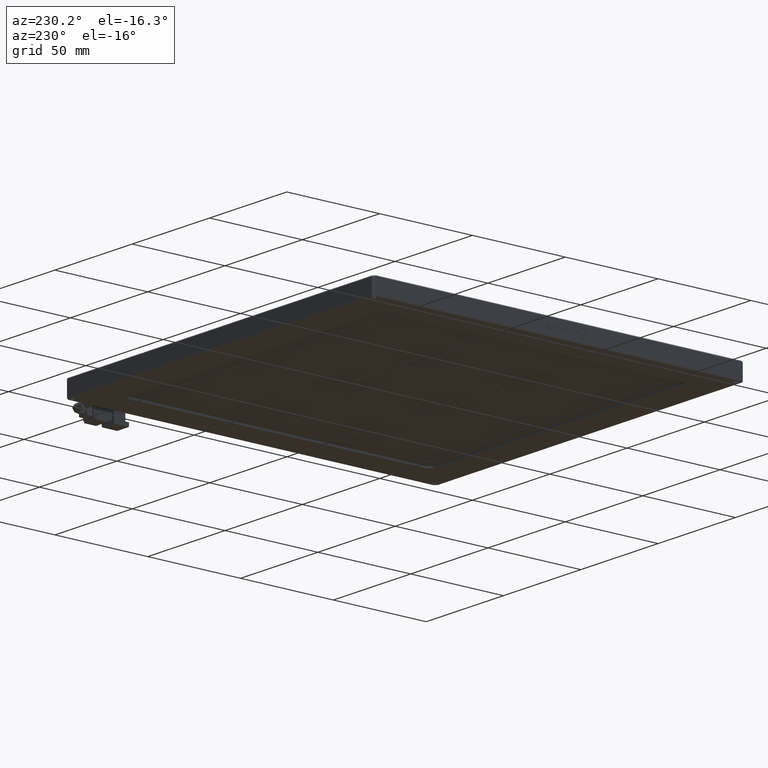
[diagram: clean part render]
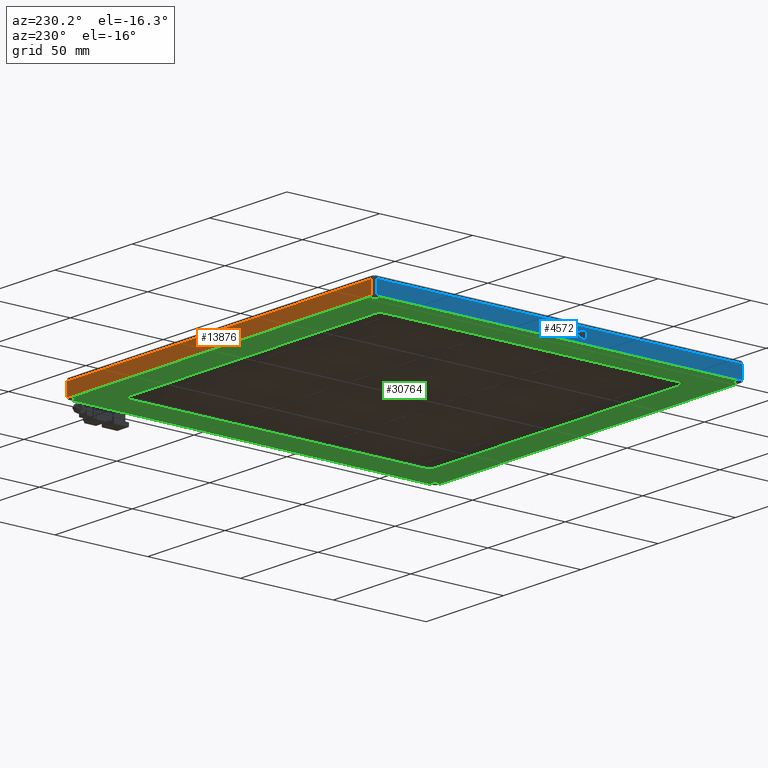
[diagram: same view with three faces highlighted in distinct colors, each labeled with its STEP entity id]
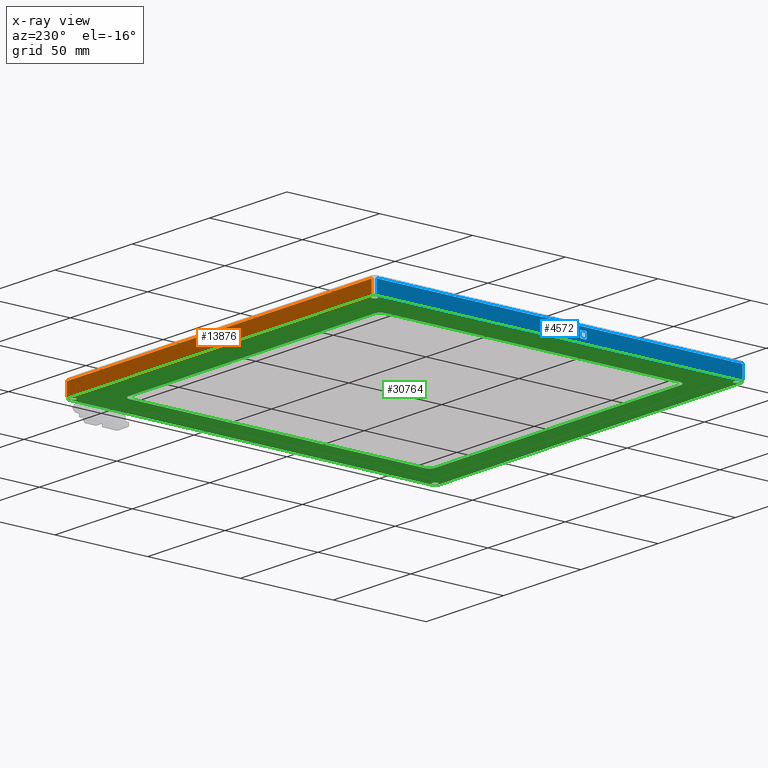
[diagram: x-ray of the same camera — body ghosted, the three highlighted faces saturated]
A machine part, auxiliary view with three faces highlighted in distinct colors.
The next image is the same camera in x-ray (body ghosted, the three faces saturated) — at least one of them is partly hidden behind the body in this view.
Their STEP definitions:

[orange] entity #13876 — the highlighted planar face has unit normal (0, -1, 0).
#762 = ORIENTED_EDGE ( 'NONE', *, *, #12660, .F. ) ;
#807 = LINE ( 'NONE', #2086, #27014 ) ;
#1254 = EDGE_CURVE ( 'NONE', #24347, #4196, #3190, .T. ) ;
#1340 = CARTESIAN_POINT ( 'NONE',  ( -144.2189553990610300, 114.9508215962441300, 4.499999999999999100 ) ) ;
#1492 = EDGE_CURVE ( 'NONE', #19578, #22005, #31698, .T. ) ;
#2086 = CARTESIAN_POINT ( 'NONE',  ( -142.7189553990610300, 114.9508215962441300, 4.499999999999999100 ) ) ;
#3190 = LINE ( 'NONE', #3331, #28673 ) ;
#3243 = LINE ( 'NONE', #25162, #16310 ) ;
#3331 = CARTESIAN_POINT ( 'NONE',  ( -144.2189553990610300, 114.9508215962441300, -2.500000000000000000 ) ) ;
#4196 = VERTEX_POINT ( 'NONE', #9262 ) ;
#4393 = ORIENTED_EDGE ( 'NONE', *, *, #1492, .T. ) ;
#5877 = AXIS2_PLACEMENT_3D ( 'NONE', #22515, #7724, #24922 ) ;
#6262 = VECTOR ( 'NONE', #15955, 1000.000000000000000 ) ;
#7090 = CARTESIAN_POINT ( 'NONE',  ( 54.28104460093894100, 114.9508215962441300, 4.499999999999999100 ) ) ;
#7301 = EDGE_CURVE ( 'NONE', #19578, #24347, #807, .T. ) ;
#7724 = DIRECTION ( 'NONE',  ( 0.0000000000000000000, -1.000000000000000000, 0.0000000000000000000 ) ) ;
#9262 = CARTESIAN_POINT ( 'NONE',  ( 54.28104460093896900, 114.9508215962441300, -2.500000000000006700 ) ) ;
#10440 = DIRECTION ( 'NONE',  ( -0.0000000000000000000, 0.0000000000000000000, 1.000000000000000000 ) ) ;
#10985 = CARTESIAN_POINT ( 'NONE',  ( -142.7189553990610300, 114.9508215962441300, -2.500000000000001300 ) ) ;
#12660 = EDGE_CURVE ( 'NONE', #4196, #22005, #3243, .T. ) ;
#13876 = ADVANCED_FACE ( 'NONE', ( #26593 ), #24830, .F. ) ;
#15063 = CARTESIAN_POINT ( 'NONE',  ( -142.7189553990610300, 114.9508215962441300, 4.499999999999999100 ) ) ;
#15955 = DIRECTION ( 'NONE',  ( 1.000000000000000000, -0.0000000000000000000, 0.0000000000000000000 ) ) ;
#16310 = VECTOR ( 'NONE', #10440, 1000.000000000000000 ) ;
#19258 = DIRECTION ( 'NONE',  ( 0.0000000000000000000, -0.0000000000000000000, -1.000000000000000000 ) ) ;
#19578 = VERTEX_POINT ( 'NONE', #15063 ) ;
#20082 = ORIENTED_EDGE ( 'NONE', *, *, #7301, .F. ) ;
#20484 = DIRECTION ( 'NONE',  ( 1.000000000000000000, -0.0000000000000000000, 0.0000000000000000000 ) ) ;
#20762 = EDGE_LOOP ( 'NONE', ( #29255, #20082, #4393, #762 ) ) ;
#22005 = VERTEX_POINT ( 'NONE', #7090 ) ;
#22515 = CARTESIAN_POINT ( 'NONE',  ( -144.2189553990610300, 114.9508215962441300, 4.499999999999999100 ) ) ;
#24347 = VERTEX_POINT ( 'NONE', #10985 ) ;
#24830 = PLANE ( 'NONE',  #5877 ) ;
#24922 = DIRECTION ( 'NONE',  ( 0.0000000000000000000, -0.0000000000000000000, -1.000000000000000000 ) ) ;
#25162 = CARTESIAN_POINT ( 'NONE',  ( 54.28104460093896900, 114.9508215962441300, 4.499999999999999100 ) ) ;
#26593 = FACE_OUTER_BOUND ( 'NONE', #20762, .T. ) ;
#27014 = VECTOR ( 'NONE', #19258, 1000.000000000000000 ) ;
#28673 = VECTOR ( 'NONE', #20484, 1000.000000000000000 ) ;
#29255 = ORIENTED_EDGE ( 'NONE', *, *, #1254, .F. ) ;
#31698 = LINE ( 'NONE', #1340, #6262 ) ;

[blue] entity #4572 — the highlighted planar face has unit normal (1, 0, 0).
#59 = B_SPLINE_CURVE_WITH_KNOTS ( 'NONE', 3,
 ( #16535, #31335, #4297, #21488 ),
 .UNSPECIFIED., .F., .F.,
 ( 4, 4 ),
 ( 2.000000000000000000, 3.000000000000000000 ),
 .UNSPECIFIED. ) ;
#69 = CARTESIAN_POINT ( 'NONE',  ( -144.2189553990610300, 5.123328932997047500, 1.071286323496172000 ) ) ;
#180 = DIRECTION ( 'NONE',  ( -0.0000000000000000000, 1.000000000000000000, -0.0000000000000000000 ) ) ;
#243 = CARTESIAN_POINT ( 'NONE',  ( -144.2189553990610300, 7.162674525209241400, 1.257332835124067100 ) ) ;
#273 = EDGE_CURVE ( 'NONE', #10196, #10934, #4444, .T. ) ;
#328 = CARTESIAN_POINT ( 'NONE',  ( -144.2189553990610300, 9.267122875668876600, -0.1845276299922080100 ) ) ;
#405 = EDGE_CURVE ( 'NONE', #28769, #4041, #3309, .T. ) ;
#496 = LINE ( 'NONE', #29916, #19362 ) ;
#580 = EDGE_LOOP ( 'NONE', ( #2016, #24256, #29377, #11588 ) ) ;
#585 = CARTESIAN_POINT ( 'NONE',  ( -144.2189553990610300, 16.41564910606362900, 0.1643095793101012600 ) ) ;
#629 = CARTESIAN_POINT ( 'NONE',  ( -144.2189553990610300, 11.53422671558246300, 2.361983997914762800 ) ) ;
#808 = CARTESIAN_POINT ( 'NONE',  ( -144.2189553990610300, 0.2757886796995665000, -0.03180061375998924400 ) ) ;
#822 = VERTEX_POINT ( 'NONE', #8773 ) ;
#907 = LINE ( 'NONE', #1846, #19747 ) ;
#952 = CARTESIAN_POINT ( 'NONE',  ( -144.2189553990610300, 19.99163612607467800, -0.2116030761793626100 ) ) ;
#1018 = EDGE_CURVE ( 'NONE', #21597, #14262, #30987, .T. ) ;
#1025 = CARTESIAN_POINT ( 'NONE',  ( -144.2189553990610300, 22.09980270260258100, 0.5596584165193790900 ) ) ;
#1034 = CARTESIAN_POINT ( 'NONE',  ( -144.2189553990610300, 3.773080665093631000, 2.880931023655539200 ) ) ;
#1107 = CARTESIAN_POINT ( 'NONE',  ( -144.2189553990610300, 4.004213919135291500, -0.6164969548676374500 ) ) ;
#1219 = VERTEX_POINT ( 'NONE', #12959 ) ;
#1260 = LINE ( 'NONE', #23339, #26702 ) ;
#1268 = B_SPLINE_CURVE_WITH_KNOTS ( 'NONE', 3,
 ( #8446, #10942, #28223, #13396 ),
 .UNSPECIFIED., .F., .F.,
 ( 4, 4 ),
 ( 7.000000000000000000, 8.000000000000000000 ),
 .UNSPECIFIED. ) ;
#1283 = EDGE_CURVE ( 'NONE', #32011, #11123, #25326, .T. ) ;
#1312 = CARTESIAN_POINT ( 'NONE',  ( -144.2189553990610300, 11.53422671558245200, -0.2194113509224326900 ) ) ;
#1313 = CARTESIAN_POINT ( 'NONE',  ( -144.2189553990610300, 4.602642075236303800, 1.059658416519442000 ) ) ;
#1345 = DIRECTION ( 'NONE',  ( -0.0000000000000000000, 1.000000000000000000, -0.0000000000000000000 ) ) ;
#1348 = CARTESIAN_POINT ( 'NONE',  ( -144.2189553990610300, 21.29707149654524300, 0.4666351607054211600 ) ) ;
#1395 = CARTESIAN_POINT ( 'NONE',  ( -144.2189553990610300, 21.28977025262957000, 2.385239811868201900 ) ) ;
#1397 = CARTESIAN_POINT ( 'NONE',  ( -144.2189553990610300, 17.99941059876253400, 2.315472370007759300 ) ) ;
#1516 = B_SPLINE_CURVE_WITH_KNOTS ( 'NONE', 3,
 ( #12069, #29385, #19496, #4778 ),
 .UNSPECIFIED., .F., .F.,
 ( 4, 4 ),
 ( 10.00000000000000000, 11.00000000000000000 ),
 .UNSPECIFIED. ) ;
#1529 = CARTESIAN_POINT ( 'NONE',  ( -144.2189553990610300, 20.71128188053672400, 1.896867718844973200 ) ) ;
#1636 = CARTESIAN_POINT ( 'NONE',  ( -144.2189553990610300, 22.35284488756739300, 2.361983997914721000 ) ) ;
#1700 = CARTESIAN_POINT ( 'NONE',  ( -144.2189553990610300, 20.39671995517156200, 1.466635160705442900 ) ) ;
#1701 = EDGE_CURVE ( 'NONE', #8575, #31688, #8103, .T. ) ;
#1744 = B_SPLINE_CURVE_WITH_KNOTS ( 'NONE', 3,
 ( #24116, #6928, #26622, #11825 ),
 .UNSPECIFIED., .F., .F.,
 ( 4, 4 ),
 ( 6.000000000000000000, 7.000000000000000000 ),
 .UNSPECIFIED. ) ;
#1757 = DIRECTION ( 'NONE',  ( -0.0000000000000000000, -4.393728232776364400E-015, -1.000000000000000000 ) ) ;
#1804 = DIRECTION ( 'NONE',  ( -0.0000000000000000000, 4.420332412859460000E-015, 1.000000000000000000 ) ) ;
#1846 = CARTESIAN_POINT ( 'NONE',  ( -144.2189553990610300, 7.162674525209234300, -0.1845276299922010700 ) ) ;
#1858 = CARTESIAN_POINT ( 'NONE',  ( -144.2189553990610300, 8.746436017908138200, 1.385239811868242700 ) ) ;
#1942 = DIRECTION ( 'NONE',  ( -0.0000000000000000000, 1.000000000000000000, -2.929152229180571400E-015 ) ) ;
#2016 = ORIENTED_EDGE ( 'NONE', *, *, #28251, .F. ) ;
#2123 = EDGE_CURVE ( 'NONE', #22031, #15035, #2715, .T. ) ;
#2153 = VERTEX_POINT ( 'NONE', #10586 ) ;
#2301 = LINE ( 'NONE', #14813, #8813 ) ;
#2412 = CARTESIAN_POINT ( 'NONE',  ( -144.2189553990610300, 5.644015790758457400, 0.8736119048915053100 ) ) ;
#2611 = CARTESIAN_POINT ( 'NONE',  ( -144.2189553990610300, 0.9555775784204634200, 2.880931023655545900 ) ) ;
#2653 = VERTEX_POINT ( 'NONE', #13901 ) ;
#2715 = LINE ( 'NONE', #20142, #7675 ) ;
#2740 = CARTESIAN_POINT ( 'NONE',  ( -144.2189553990610300, 21.68762044192095600, 1.268960742100769100 ) ) ;
#2837 = EDGE_CURVE ( 'NONE', #19713, #18942, #5857, .T. ) ;
#2850 = LINE ( 'NONE', #12446, #7804 ) ;
#2859 = VERTEX_POINT ( 'NONE', #14835 ) ;
#2868 = DIRECTION ( 'NONE',  ( -0.0000000000000000000, -1.000000000000000000, 3.439221237990548500E-015 ) ) ;
#2926 = VERTEX_POINT ( 'NONE', #328 ) ;
#2991 = VERTEX_POINT ( 'NONE', #20515 ) ;
#3019 = VECTOR ( 'NONE', #22341, 1000.000000000000000 ) ;
#3059 = CARTESIAN_POINT ( 'NONE',  ( -144.2189553990610300, 5.763337045490580100, -0.2194113509224153400 ) ) ;
#3068 = CARTESIAN_POINT ( 'NONE',  ( -144.2189553990610300, 22.66389139919511200, 1.617797951403085600 ) ) ;
#3074 = DIRECTION ( 'NONE',  ( -0.0000000000000000000, 1.000000000000000000, -0.0000000000000000000 ) ) ;
#3154 = CARTESIAN_POINT ( 'NONE',  ( -144.2189553990610300, 19.45296657496575000, 0.1410537653566135100 ) ) ;
#3184 = VERTEX_POINT ( 'NONE', #4434 ) ;
#3200 = DIRECTION ( 'NONE',  ( -0.0000000000000000000, -1.000000000000000000, -0.0000000000000000000 ) ) ;
#3248 = EDGE_CURVE ( 'NONE', #13472, #10475, #12937, .T. ) ;
#3264 = EDGE_LOOP ( 'NONE', ( #6927, #15075, #25315, #28701, #19310, #4285, #5207, #7245, #30442, #10673 ) ) ;
#3271 = CARTESIAN_POINT ( 'NONE',  ( -144.2189553990610300, 21.64421860308917500, -0.2194113509224708500 ) ) ;
#3284 = CARTESIAN_POINT ( 'NONE',  ( -144.2189553990610300, 6.258604757767516300, 1.904675993588109200 ) ) ;
#3309 = B_SPLINE_CURVE_WITH_KNOTS ( 'NONE', 3,
 ( #18750, #18849, #18969, #19079 ),
 .UNSPECIFIED., .F., .F.,
 ( 4, 4 ),
 ( 3.000000000000000000, 4.000000000000000000 ),
 .UNSPECIFIED. ) ;
#3399 = VERTEX_POINT ( 'NONE', #28998 ) ;
#3442 = CARTESIAN_POINT ( 'NONE',  ( -144.2189553990610300, 19.45296657496575000, 0.1410537653566135100 ) ) ;
#3515 = VECTOR ( 'NONE', #16135, 1000.000000000000000 ) ;
#3534 = CARTESIAN_POINT ( 'NONE',  ( -144.2189553990610300, 4.004213919135302100, 2.201169288717774700 ) ) ;
#3563 = EDGE_CURVE ( 'NONE', #822, #8907, #11604, .T. ) ;
#3581 = VECTOR ( 'NONE', #19644, 1000.000000000000000 ) ;
#3605 = CARTESIAN_POINT ( 'NONE',  ( -144.2189553990610300, 5.795922226669469900, 2.361983997914776500 ) ) ;
#3628 = CARTESIAN_POINT ( 'NONE',  ( -144.2189553990610300, 3.773080665093620800, -0.8474943099680415400 ) ) ;
#3645 = ORIENTED_EDGE ( 'NONE', *, *, #2837, .F. ) ;
#3652 = VECTOR ( 'NONE', #19697, 1000.000000000000000 ) ;
#3706 = VECTOR ( 'NONE', #4263, 1000.000000000000000 ) ;
#3731 = CARTESIAN_POINT ( 'NONE',  ( -144.2189553990610300, 21.28625483889234700, 2.028763338098614500 ) ) ;
#3787 = VERTEX_POINT ( 'NONE', #16484 ) ;
#3794 = CARTESIAN_POINT ( 'NONE',  ( -144.2189553990610300, 4.602642075236303800, 1.059658416519442000 ) ) ;
#3811 = CARTESIAN_POINT ( 'NONE',  ( -144.2189553990610300, 10.40963234024449400, 0.2457049281473222500 ) ) ;
#3823 = LINE ( 'NONE', #19832, #3019 ) ;
#3852 = VERTEX_POINT ( 'NONE', #26757 ) ;
#4005 = EDGE_CURVE ( 'NONE', #16863, #3852, #26230, .T. ) ;
#4041 = VERTEX_POINT ( 'NONE', #7741 ) ;
#4049 = EDGE_CURVE ( 'NONE', #9760, #27956, #17879, .T. ) ;
#4083 = CARTESIAN_POINT ( 'NONE',  ( -144.2189553990610300, 20.39671995517156200, 1.466635160705442900 ) ) ;
#4263 = DIRECTION ( 'NONE',  ( -0.0000000000000000000, 4.812458675290533900E-015, 1.000000000000000000 ) ) ;
#4285 = ORIENTED_EDGE ( 'NONE', *, *, #23673, .F. ) ;
#4297 = CARTESIAN_POINT ( 'NONE',  ( -144.2189553990610300, 5.358253216393819700, 0.1682982218195947000 ) ) ;
#4336 = DIRECTION ( 'NONE',  ( -0.0000000000000000000, 2.775557561562889000E-015, 1.000000000000000000 ) ) ;
#4395 = CARTESIAN_POINT ( 'NONE',  ( -144.2189553990610300, 4.004213919135295000, -0.1677393702695095800 ) ) ;
#4407 = EDGE_CURVE ( 'NONE', #21597, #12418, #4595, .T. ) ;
#4421 = LINE ( 'NONE', #18939, #29140 ) ;
#4434 = CARTESIAN_POINT ( 'NONE',  ( -144.2189553990610300, 22.59878864094754600, 0.5596584165193790900 ) ) ;
#4444 = LINE ( 'NONE', #16495, #3706 ) ;
#4484 = CARTESIAN_POINT ( 'NONE',  ( -144.2189553990610300, 16.41564910606362900, 0.1643095793101012600 ) ) ;
#4502 = DIRECTION ( 'NONE',  ( -0.0000000000000000000, -0.0000000000000000000, -1.000000000000000000 ) ) ;
#4543 = ORIENTED_EDGE ( 'NONE', *, *, #29573, .F. ) ;
#4566 = FACE_BOUND ( 'NONE', #3264, .T. ) ;
#4572 = ADVANCED_FACE ( 'NONE', ( #27282, #18382, #5303, #30785, #24185, #17602, #11081, #4566, #30023, #23436 ), #25824, .F. ) ;
#4595 = LINE ( 'NONE', #5033, #16901 ) ;
#4645 = CARTESIAN_POINT ( 'NONE',  ( -144.2189553990610300, 18.83465938188865600, 1.094542137449625100 ) ) ;
#4662 = ORIENTED_EDGE ( 'NONE', *, *, #2123, .F. ) ;
#4731 = CARTESIAN_POINT ( 'NONE',  ( -144.2189553990610300, 11.53422671558246300, 2.361983997914762800 ) ) ;
#4735 = CARTESIAN_POINT ( 'NONE',  ( -144.2189553990610300, 18.71892114500384000, 2.323111634475030700 ) ) ;
#4773 = EDGE_CURVE ( 'NONE', #30234, #28331, #30133, .T. ) ;
#4778 = CARTESIAN_POINT ( 'NONE',  ( -144.2189553990610300, 21.29707149654524300, 0.4666351607054211600 ) ) ;
#4788 = CARTESIAN_POINT ( 'NONE',  ( -144.2189553990610300, 6.681671280212020400, 2.175937486286847000 ) ) ;
#4911 = LINE ( 'NONE', #22745, #17220 ) ;
#4952 = CARTESIAN_POINT ( 'NONE',  ( -144.2189553990610300, 14.88238788378137100, 0.08690287298235288600 ) ) ;
#4955 = DIRECTION ( 'NONE',  ( -0.0000000000000000000, 1.000000000000000000, -0.0000000000000000000 ) ) ;
#4971 = VECTOR ( 'NONE', #24396, 1000.000000000000000 ) ;
#5030 = EDGE_CURVE ( 'NONE', #5845, #20355, #5539, .T. ) ;
#5033 = CARTESIAN_POINT ( 'NONE',  ( -144.2189553990610300, -83.54917840375587400, 4.499999999999999100 ) ) ;
#5161 = ORIENTED_EDGE ( 'NONE', *, *, #26346, .F. ) ;
#5179 = VERTEX_POINT ( 'NONE', #10178 ) ;
#5203 = EDGE_CURVE ( 'NONE', #10699, #22848, #12450, .T. ) ;
#5207 = ORIENTED_EDGE ( 'NONE', *, *, #30153, .F. ) ;
#5251 = CARTESIAN_POINT ( 'NONE',  ( -144.2189553990610300, 4.004213919135302100, 2.201169288717774700 ) ) ;
#5303 = FACE_BOUND ( 'NONE', #26277, .T. ) ;
#5464 = VECTOR ( 'NONE', #3200, 1000.000000000000000 ) ;
#5466 = CARTESIAN_POINT ( 'NONE',  ( -144.2189553990610300, -83.54917840375587400, 4.499999999999999100 ) ) ;
#5473 = CARTESIAN_POINT ( 'NONE',  ( -144.2189553990610300, 10.40963234024450100, 1.889228454377694900 ) ) ;
#5512 = VECTOR ( 'NONE', #31949, 1000.000000000000000 ) ;
#5539 = B_SPLINE_CURVE_WITH_KNOTS ( 'NONE', 3,
 ( #24451, #22001, #4788, #26969 ),
 .UNSPECIFIED., .F., .F.,
 ( 4, 4 ),
 ( 10.00000000000000000, 11.00000000000000000 ),
 .UNSPECIFIED. ) ;
#5552 = CARTESIAN_POINT ( 'NONE',  ( -144.2189553990610300, 13.02036787296478900, 2.315472370007780200 ) ) ;
#5602 = CARTESIAN_POINT ( 'NONE',  ( -144.2189553990610300, 6.305724822667214000, -0.2194113509224153400 ) ) ;
#5795 = CARTESIAN_POINT ( 'NONE',  ( -144.2189553990610300, 9.303223470585205500, 2.024774695589197200 ) ) ;
#5836 = CARTESIAN_POINT ( 'NONE',  ( -144.2189553990610300, 22.13232027967115900, 1.652681672333317100 ) ) ;
#5845 = VERTEX_POINT ( 'NONE', #3605 ) ;
#5857 = LINE ( 'NONE', #9846, #3652 ) ;
#5865 = CARTESIAN_POINT ( 'NONE',  ( -144.2189553990610300, 20.76556798113137600, 0.4666351607054211600 ) ) ;
#5912 = VERTEX_POINT ( 'NONE', #5836 ) ;
#5923 = VECTOR ( 'NONE', #2868, 1000.000000000000000 ) ;
#5989 = EDGE_LOOP ( 'NONE', ( #23962, #6500, #11214, #12745 ) ) ;
#6240 = EDGE_CURVE ( 'NONE', #26598, #24643, #13869, .T. ) ;
#6317 = CARTESIAN_POINT ( 'NONE',  ( -144.2189553990610300, 22.66389139919511200, 1.617797951403085600 ) ) ;
#6349 = LINE ( 'NONE', #4484, #12086 ) ;
#6416 = ORIENTED_EDGE ( 'NONE', *, *, #16525, .F. ) ;
#6469 = EDGE_CURVE ( 'NONE', #20355, #26598, #27906, .T. ) ;
#6500 = ORIENTED_EDGE ( 'NONE', *, *, #16210, .F. ) ;
#6609 = VERTEX_POINT ( 'NONE', #24709 ) ;
#6615 = EDGE_CURVE ( 'NONE', #8907, #23183, #2850, .T. ) ;
#6671 = ORIENTED_EDGE ( 'NONE', *, *, #20819, .F. ) ;
#6713 = VERTEX_POINT ( 'NONE', #2611 ) ;
#6878 = ORIENTED_EDGE ( 'NONE', *, *, #21098, .F. ) ;
#6892 = B_SPLINE_CURVE_WITH_KNOTS ( 'NONE', 3,
 ( #29567, #4952, #22196, #7451 ),
 .UNSPECIFIED., .F., .F.,
 ( 4, 4 ),
 ( 5.000000000000000000, 6.000000000000000000 ),
 .UNSPECIFIED. ) ;
#6904 = CARTESIAN_POINT ( 'NONE',  ( -144.2189553990610300, 22.12501903575569900, 1.908495625821696100 ) ) ;
#6927 = ORIENTED_EDGE ( 'NONE', *, *, #4773, .F. ) ;
#6928 = CARTESIAN_POINT ( 'NONE',  ( -144.2189553990610300, 19.86873185349469400, 2.361983997914735200 ) ) ;
#7123 = VERTEX_POINT ( 'NONE', #20877 ) ;
#7222 = CARTESIAN_POINT ( 'NONE',  ( -144.2189553990610300, 18.30315586647478900, 1.071286323496123400 ) ) ;
#7245 = ORIENTED_EDGE ( 'NONE', *, *, #27056, .F. ) ;
#7293 = CARTESIAN_POINT ( 'NONE',  ( -144.2189553990610300, 5.806738884322371100, 2.024774695589204300 ) ) ;
#7310 = CARTESIAN_POINT ( 'NONE',  ( -144.2189553990610300, 3.324486177564312000, 2.880931023655539200 ) ) ;
#7368 = CARTESIAN_POINT ( 'NONE',  ( -144.2189553990610300, 14.87528945219695400, 0.6294258583798700800 ) ) ;
#7410 = ORIENTED_EDGE ( 'NONE', *, *, #10155, .F. ) ;
#7415 = CARTESIAN_POINT ( 'NONE',  ( -144.2189553990610300, 17.48954039865457900, 2.315472370007766400 ) ) ;
#7451 = CARTESIAN_POINT ( 'NONE',  ( -144.2189553990610300, 14.02915640730772400, -0.1845276299922253600 ) ) ;
#7558 = EDGE_CURVE ( 'NONE', #4041, #2859, #21069, .T. ) ;
#7593 = ORIENTED_EDGE ( 'NONE', *, *, #8306, .F. ) ;
#7645 = CARTESIAN_POINT ( 'NONE',  ( -144.2189553990610300, 22.13232027967115900, 1.451187621495042500 ) ) ;
#7675 = VECTOR ( 'NONE', #17646, 1000.000000000000000 ) ;
#7741 = CARTESIAN_POINT ( 'NONE',  ( -144.2189553990610300, 11.53422671558245200, -0.2194113509224326900 ) ) ;
#7763 = CARTESIAN_POINT ( 'NONE',  ( -144.2189553990610300, 19.45296657496575000, 0.1410537653566135100 ) ) ;
#7785 = VERTEX_POINT ( 'NONE', #7310 ) ;
#7804 = VECTOR ( 'NONE', #29731, 1000.000000000000000 ) ;
#7927 = VERTEX_POINT ( 'NONE', #10519 ) ;
#7974 = CARTESIAN_POINT ( 'NONE',  ( -144.2189553990610300, 4.631441426236830400, 0.2457049281473430700 ) ) ;
#8010 = LINE ( 'NONE', #16515, #21112 ) ;
#8016 = ORIENTED_EDGE ( 'NONE', *, *, #11056, .F. ) ;
#8033 = EDGE_CURVE ( 'NONE', #30982, #30207, #18601, .T. ) ;
#8046 = LINE ( 'NONE', #19448, #4971 ) ;
#8103 = LINE ( 'NONE', #26933, #13889 ) ;
#8110 = ORIENTED_EDGE ( 'NONE', *, *, #15268, .F. ) ;
#8179 = CARTESIAN_POINT ( 'NONE',  ( -144.2189553990610300, 20.78726890054726800, 0.01713543112186882700 ) ) ;
#8181 = LINE ( 'NONE', #29352, #21295 ) ;
#8251 = CARTESIAN_POINT ( 'NONE',  ( -144.2189553990610300, 6.338242399736123500, 1.641053765356614800 ) ) ;
#8257 = CARTESIAN_POINT ( 'NONE',  ( -144.2189553990610300, 8.204048240731284000, 2.361983997914769900 ) ) ;
#8306 = EDGE_CURVE ( 'NONE', #5179, #27542, #28586, .T. ) ;
#8341 = ORIENTED_EDGE ( 'NONE', *, *, #405, .F. ) ;
#8362 = CARTESIAN_POINT ( 'NONE',  ( -144.2189553990610300, 22.51198496328398600, 0.05583878428573607600 ) ) ;
#8426 = VECTOR ( 'NONE', #1942, 1000.000000000000000 ) ;
#8446 = CARTESIAN_POINT ( 'NONE',  ( -144.2189553990610300, 0.2757886796995734400, 2.201169288717788500 ) ) ;
#8490 = ORIENTED_EDGE ( 'NONE', *, *, #19806, .F. ) ;
#8501 = CARTESIAN_POINT ( 'NONE',  ( -144.2189553990610300, 21.02212557983329000, 1.152681672333323500 ) ) ;
#8527 = VERTEX_POINT ( 'NONE', #5865 ) ;
#8575 = VERTEX_POINT ( 'NONE', #10802 ) ;
#8698 = DIRECTION ( 'NONE',  ( 1.000000000000000000, 0.0000000000000000000, 0.0000000000000000000 ) ) ;
#8713 = CARTESIAN_POINT ( 'NONE',  ( -144.2189553990610300, 5.795922226669469900, 2.361983997914776500 ) ) ;
#8773 = CARTESIAN_POINT ( 'NONE',  ( -144.2189553990610300, 5.644015790758457400, 1.222449114193849200 ) ) ;
#8792 = ORIENTED_EDGE ( 'NONE', *, *, #12439, .F. ) ;
#8813 = VECTOR ( 'NONE', #27208, 1000.000000000000000 ) ;
#8907 = VERTEX_POINT ( 'NONE', #9858 ) ;
#8967 = EDGE_CURVE ( 'NONE', #1219, #5912, #23579, .T. ) ;
#9000 = CARTESIAN_POINT ( 'NONE',  ( -144.2189553990610300, 14.02915640730773100, 1.443379346751969100 ) ) ;
#9154 = ORIENTED_EDGE ( 'NONE', *, *, #13176, .F. ) ;
#9210 = EDGE_CURVE ( 'NONE', #8527, #1219, #28814, .T. ) ;
#9263 = CARTESIAN_POINT ( 'NONE',  ( -144.2189553990610300, 6.815527418665194400, 0.5131467886124452300 ) ) ;
#9282 = CARTESIAN_POINT ( 'NONE',  ( -144.2189553990610300, 8.214864898383966700, 2.024774695589201200 ) ) ;
#9306 = ORIENTED_EDGE ( 'NONE', *, *, #26473, .F. ) ;
#9450 = DIRECTION ( 'NONE',  ( -0.0000000000000000000, 1.000000000000000000, -1.390599087204860200E-014 ) ) ;
#9493 = LINE ( 'NONE', #17327, #29204 ) ;
#9515 = CARTESIAN_POINT ( 'NONE',  ( -144.2189553990610300, 19.56147117204543000, 2.024774695589162600 ) ) ;
#9528 = EDGE_CURVE ( 'NONE', #22848, #16482, #8181, .T. ) ;
#9553 = DIRECTION ( 'NONE',  ( -0.0000000000000000000, -4.891351440459229700E-015, -1.000000000000000000 ) ) ;
#9563 = LINE ( 'NONE', #26775, #28459 ) ;
#9573 = DIRECTION ( 'NONE',  ( -0.0000000000000000000, -3.225647976951471700E-015, -1.000000000000000000 ) ) ;
#9760 = VERTEX_POINT ( 'NONE', #20439 ) ;
#9846 = CARTESIAN_POINT ( 'NONE',  ( -144.2189553990610300, 0.9555775784204529900, -0.8474943099680345400 ) ) ;
#9858 = CARTESIAN_POINT ( 'NONE',  ( -144.2189553990610300, 6.338242399736123500, 1.222449114193849200 ) ) ;
#9968 = EDGE_CURVE ( 'NONE', #24770, #30982, #1516, .T. ) ;
#10123 = VERTEX_POINT ( 'NONE', #22627 ) ;
#10141 = VERTEX_POINT ( 'NONE', #12802 ) ;
#10155 = EDGE_CURVE ( 'NONE', #30926, #10123, #26285, .T. ) ;
#10176 = VERTEX_POINT ( 'NONE', #10562 ) ;
#10178 = CARTESIAN_POINT ( 'NONE',  ( -144.2189553990610300, 5.806738884322371100, 2.024774695589204300 ) ) ;
#10196 = VERTEX_POINT ( 'NONE', #30504 ) ;
#10242 = EDGE_LOOP ( 'NONE', ( #14908, #27354, #6878, #21372, #12210, #17699, #17281, #6671 ) ) ;
#10261 = CARTESIAN_POINT ( 'NONE',  ( -144.2189553990610300, 6.193501999519726000, 0.2573328351240800100 ) ) ;
#10283 = LINE ( 'NONE', #22749, #22603 ) ;
#10366 = EDGE_CURVE ( 'NONE', #27956, #30926, #17268, .T. ) ;
#10475 = VERTEX_POINT ( 'NONE', #24501 ) ;
#10519 = CARTESIAN_POINT ( 'NONE',  ( -144.2189553990610300, 15.89496224830289100, 2.315472370007773500 ) ) ;
#10539 = LINE ( 'NONE', #28284, #19395 ) ;
#10543 = VERTEX_POINT ( 'NONE', #12545 ) ;
#10562 = CARTESIAN_POINT ( 'NONE',  ( -144.2189553990610300, 17.18579513094209300, -0.1845276299922356300 ) ) ;
#10585 = EDGE_LOOP ( 'NONE', ( #27665, #29897, #8341, #26239 ) ) ;
#10586 = CARTESIAN_POINT ( 'NONE',  ( -144.2189553990610300, 8.746436017908132900, -0.1845276299922080100 ) ) ;
#10602 = CARTESIAN_POINT ( 'NONE',  ( -144.2189553990610300, 0.5068539813530732500, -0.8474943099680311000 ) ) ;
#10637 = CARTESIAN_POINT ( 'NONE',  ( -144.2189553990610300, 8.204048240731284000, 2.361983997914769900 ) ) ;
#10673 = ORIENTED_EDGE ( 'NONE', *, *, #23940, .F. ) ;
#10683 = LINE ( 'NONE', #14877, #29632 ) ;
#10696 = ORIENTED_EDGE ( 'NONE', *, *, #8033, .F. ) ;
#10699 = VERTEX_POINT ( 'NONE', #13299 ) ;
#10735 = CARTESIAN_POINT ( 'NONE',  ( -144.2189553990610300, 9.267122875668883700, 1.234077021170572300 ) ) ;
#10791 = B_SPLINE_CURVE_WITH_KNOTS ( 'NONE', 3,
 ( #15752, #1034, #18229, #3534 ),
 .UNSPECIFIED., .F., .F.,
 ( 4, 4 ),
 ( 5.000000000000000000, 6.000000000000000000 ),
 .UNSPECIFIED. ) ;
#10795 = LINE ( 'NONE', #30942, #3515 ) ;
#10801 = CARTESIAN_POINT ( 'NONE',  ( -144.2189553990610300, 16.41564910606363300, 2.315472370007773500 ) ) ;
#10802 = CARTESIAN_POINT ( 'NONE',  ( -144.2189553990610300, 0.2757886796995665000, -0.03180061375998924400 ) ) ;
#10820 = CARTESIAN_POINT ( 'NONE',  ( -144.2189553990610300, 8.214864898383966700, 2.024774695589201200 ) ) ;
#10857 = ORIENTED_EDGE ( 'NONE', *, *, #15112, .F. ) ;
#10871 = ORIENTED_EDGE ( 'NONE', *, *, #18341, .F. ) ;
#10934 = VERTEX_POINT ( 'NONE', #243 ) ;
#10942 = CARTESIAN_POINT ( 'NONE',  ( -144.2189553990610300, 0.2757886796995682200, 2.649831739969923800 ) ) ;
#11003 = CARTESIAN_POINT ( 'NONE',  ( -144.2189553990610300, 21.63333434132619400, 2.036402602565892600 ) ) ;
#11008 = ORIENTED_EDGE ( 'NONE', *, *, #15858, .F. ) ;
#11056 = EDGE_CURVE ( 'NONE', #15447, #8527, #21308, .T. ) ;
#11081 = FACE_BOUND ( 'NONE', #10585, .T. ) ;
#11096 = CARTESIAN_POINT ( 'NONE',  ( -144.2189553990610300, 16.41564910606363300, 2.315472370007773500 ) ) ;
#11123 = VERTEX_POINT ( 'NONE', #3154 ) ;
#11214 = ORIENTED_EDGE ( 'NONE', *, *, #18055, .F. ) ;
#11222 = CARTESIAN_POINT ( 'NONE',  ( -144.2189553990610300, 22.34554364365159200, 0.9589958962381434100 ) ) ;
#11259 = VERTEX_POINT ( 'NONE', #1529 ) ;
#11305 = DIRECTION ( 'NONE',  ( -0.0000000000000000000, -0.0000000000000000000, 1.000000000000000000 ) ) ;
#11588 = ORIENTED_EDGE ( 'NONE', *, *, #30027, .F. ) ;
#11604 = LINE ( 'NONE', #17150, #31311 ) ;
#11615 = CARTESIAN_POINT ( 'NONE',  ( -144.2189553990610300, 8.760835693408347800, 1.827100276984551500 ) ) ;
#11623 = CARTESIAN_POINT ( 'NONE',  ( -144.2189553990610300, -83.54917840375588900, -2.500000000000008400 ) ) ;
#11733 = EDGE_LOOP ( 'NONE', ( #8490, #9154, #10871, #24748, #25778, #26449, #22681, #4662, #8792, #24077 ) ) ;
#11788 = B_SPLINE_CURVE_WITH_KNOTS ( 'NONE', 3,
 ( #13194, #15656, #952, #18126 ),
 .UNSPECIFIED., .F., .F.,
 ( 4, 4 ),
 ( 9.000000000000000000, 10.00000000000000000 ),
 .UNSPECIFIED. ) ;
#11825 = CARTESIAN_POINT ( 'NONE',  ( -144.2189553990610300, 20.39671995517156200, 1.943379346751941600 ) ) ;
#11918 = CARTESIAN_POINT ( 'NONE',  ( -144.2189553990610300, 21.65503526074207800, 0.1410537653565996400 ) ) ;
#11974 = LINE ( 'NONE', #17110, #18518 ) ;
#12055 = EDGE_CURVE ( 'NONE', #17399, #22227, #6349, .T. ) ;
#12069 = CARTESIAN_POINT ( 'NONE',  ( -144.2189553990610300, 21.70925375722664800, 0.8271002769845020600 ) ) ;
#12086 = VECTOR ( 'NONE', #9573, 1000.000000000000000 ) ;
#12088 = ORIENTED_EDGE ( 'NONE', *, *, #24167, .F. ) ;
#12151 = DIRECTION ( 'NONE',  ( -0.0000000000000000000, 3.107473099484055600E-015, 1.000000000000000000 ) ) ;
#12193 = CARTESIAN_POINT ( 'NONE',  ( -144.2189553990610300, 114.9508215962441300, 4.499999999999999100 ) ) ;
#12210 = ORIENTED_EDGE ( 'NONE', *, *, #12282, .F. ) ;
#12282 = EDGE_CURVE ( 'NONE', #7927, #17399, #29535, .T. ) ;
#12311 = CARTESIAN_POINT ( 'NONE',  ( -144.2189553990610300, 5.372855704224743800, 1.986071342425309400 ) ) ;
#12335 = DIRECTION ( 'NONE',  ( 0.0000000000000000000, 0.0000000000000000000, -1.000000000000000000 ) ) ;
#12418 = VERTEX_POINT ( 'NONE', #11623 ) ;
#12439 = EDGE_CURVE ( 'NONE', #10475, #22031, #1744, .T. ) ;
#12446 = CARTESIAN_POINT ( 'NONE',  ( -144.2189553990610300, 6.338242399736123500, 1.641053765356614800 ) ) ;
#12450 = LINE ( 'NONE', #25081, #5923 ) ;
#12545 = CARTESIAN_POINT ( 'NONE',  ( -144.2189553990610300, 7.683361382970318200, 1.385239811868249600 ) ) ;
#12559 = EDGE_CURVE ( 'NONE', #3399, #10699, #6892, .T. ) ;
#12676 = CARTESIAN_POINT ( 'NONE',  ( -144.2189553990610300, 5.763337045490581900, 0.1294258583798974000 ) ) ;
#12688 = ORIENTED_EDGE ( 'NONE', *, *, #3563, .F. ) ;
#12696 = CARTESIAN_POINT ( 'NONE',  ( -144.2189553990610300, 19.86873185349468700, 0.2962051985637426100 ) ) ;
#12745 = ORIENTED_EDGE ( 'NONE', *, *, #24513, .F. ) ;
#12802 = CARTESIAN_POINT ( 'NONE',  ( -144.2189553990610300, 17.18579513094208600, 0.1643095793100943200 ) ) ;
#12818 = CARTESIAN_POINT ( 'NONE',  ( -144.2189553990610300, 5.018407353765231200, -0.1805389874827353900 ) ) ;
#12825 = B_SPLINE_CURVE_WITH_KNOTS ( 'NONE', 3,
 ( #14646, #29495, #22115, #7368 ),
 .UNSPECIFIED., .F., .F.,
 ( 4, 4 ),
 ( 6.000000000000000000, 7.000000000000000000 ),
 .UNSPECIFIED. ) ;
#12880 = CARTESIAN_POINT ( 'NONE',  ( -144.2189553990610300, 10.37353174532839800, 1.082914230472908900 ) ) ;
#12918 = DIRECTION ( 'NONE',  ( -0.0000000000000000000, -0.0000000000000000000, -1.000000000000000000 ) ) ;
#12937 = B_SPLINE_CURVE_WITH_KNOTS ( 'NONE', 3,
 ( #7222, #21947, #4735, #24417 ),
 .UNSPECIFIED., .F., .F.,
 ( 4, 4 ),
 ( 7.000000000000000000, 8.000000000000000000 ),
 .UNSPECIFIED. ) ;
#12959 = CARTESIAN_POINT ( 'NONE',  ( -144.2189553990610300, 21.68762044192095600, 1.268960742100769100 ) ) ;
#12986 = CARTESIAN_POINT ( 'NONE',  ( -144.2189553990610300, 7.162674525209241400, 1.257332835124067100 ) ) ;
#13046 = CARTESIAN_POINT ( 'NONE',  ( -144.2189553990610300, 0.9555775784204529900, -0.8474943099680345400 ) ) ;
#13076 = VECTOR ( 'NONE', #22425, 1000.000000000000000 ) ;
#13087 = VECTOR ( 'NONE', #31796, 1000.000000000000000 ) ;
#13176 = EDGE_CURVE ( 'NONE', #22818, #6609, #11788, .T. ) ;
#13188 = CARTESIAN_POINT ( 'NONE',  ( -144.2189553990610300, 19.04788274586909900, 0.1566703148428161300 ) ) ;
#13194 = CARTESIAN_POINT ( 'NONE',  ( -144.2189553990610300, 20.45100605576632400, 0.6061700444263545800 ) ) ;
#13243 = CARTESIAN_POINT ( 'NONE',  ( -144.2189553990610300, 3.324486177564301800, -0.8474943099680415400 ) ) ;
#13280 = CARTESIAN_POINT ( 'NONE',  ( -144.2189553990610300, 21.65503526074207800, 0.1410537653565996400 ) ) ;
#13283 = CARTESIAN_POINT ( 'NONE',  ( -144.2189553990610300, 20.71128188053672400, 1.455007253728678200 ) ) ;
#13299 = CARTESIAN_POINT ( 'NONE',  ( -144.2189553990610300, 14.02915640730772400, -0.1845276299922253600 ) ) ;
#13386 = ORIENTED_EDGE ( 'NONE', *, *, #29441, .F. ) ;
#13388 = CARTESIAN_POINT ( 'NONE',  ( -144.2189553990610300, 21.28977025262956200, 0.2496935706567601800 ) ) ;
#13396 = CARTESIAN_POINT ( 'NONE',  ( -144.2189553990610300, 0.9555775784204634200, 2.880931023655545900 ) ) ;
#13444 = DIRECTION ( 'NONE',  ( 0.0000000000000000000, 1.000000000000000000, 0.0000000000000000000 ) ) ;
#13472 = VERTEX_POINT ( 'NONE', #30199 ) ;
#13496 = ORIENTED_EDGE ( 'NONE', *, *, #21252, .F. ) ;
#13549 = CARTESIAN_POINT ( 'NONE',  ( -144.2189553990610300, 20.97879134511204700, 1.834908551727597400 ) ) ;
#13550 = ORIENTED_EDGE ( 'NONE', *, *, #9210, .F. ) ;
#13661 = ORIENTED_EDGE ( 'NONE', *, *, #29219, .F. ) ;
#13699 = LINE ( 'NONE', #26090, #26848 ) ;
#13849 = VECTOR ( 'NONE', #16017, 1000.000000000000000 ) ;
#13869 = LINE ( 'NONE', #21842, #13087 ) ;
#13872 = CARTESIAN_POINT ( 'NONE',  ( -144.2189553990610300, 18.30315586647478900, 1.071286323496123400 ) ) ;
#13889 = VECTOR ( 'NONE', #12151, 1000.000000000000000 ) ;
#13901 = CARTESIAN_POINT ( 'NONE',  ( -144.2189553990610300, 17.48954039865457200, -0.1845276299922357600 ) ) ;
#13918 = EDGE_CURVE ( 'NONE', #2859, #18238, #30351, .T. ) ;
#13970 = CARTESIAN_POINT ( 'NONE',  ( -144.2189553990610300, 22.66389139919511200, 1.617797951403085600 ) ) ;
#14031 = EDGE_LOOP ( 'NONE', ( #12088, #7410, #22363, #14928, #16241, #7593, #17393, #14672, #12688, #13661, #14883, #24966, #19139, #5161 ) ) ;
#14167 = CARTESIAN_POINT ( 'NONE',  ( -144.2189553990610300, 3.324486177564315500, 2.880931023655539200 ) ) ;
#14169 = DIRECTION ( 'NONE',  ( -0.0000000000000000000, 1.000000000000000000, -0.0000000000000000000 ) ) ;
#14213 = CARTESIAN_POINT ( 'NONE',  ( -144.2189553990610300, 7.683361382970311100, -0.1845276299922045400 ) ) ;
#14238 = EDGE_CURVE ( 'NONE', #27542, #9760, #59, .T. ) ;
#14262 = VERTEX_POINT ( 'NONE', #29004 ) ;
#14302 = CARTESIAN_POINT ( 'NONE',  ( -144.2189553990610300, 21.63333434132619400, 2.036402602565892600 ) ) ;
#14420 = VECTOR ( 'NONE', #20866, 1000.000000000000000 ) ;
#14433 = EDGE_CURVE ( 'NONE', #30562, #3184, #10683, .T. ) ;
#14495 = DIRECTION ( 'NONE',  ( -0.0000000000000000000, 4.163336342344333900E-015, 1.000000000000000000 ) ) ;
#14616 = LINE ( 'NONE', #20832, #13849 ) ;
#14646 = CARTESIAN_POINT ( 'NONE',  ( -144.2189553990610300, 14.02915640730773100, 1.443379346751969100 ) ) ;
#14650 = VERTEX_POINT ( 'NONE', #18091 ) ;
#14652 = CARTESIAN_POINT ( 'NONE',  ( -144.2189553990610300, 13.53017046896265500, 2.315472370007780200 ) ) ;
#14659 = EDGE_CURVE ( 'NONE', #30207, #30562, #17898, .T. ) ;
#14672 = ORIENTED_EDGE ( 'NONE', *, *, #6615, .F. ) ;
#14793 = CARTESIAN_POINT ( 'NONE',  ( -144.2189553990610300, 5.145029852412937600, 1.668298221819596100 ) ) ;
#14798 = VERTEX_POINT ( 'NONE', #14991 ) ;
#14813 = CARTESIAN_POINT ( 'NONE',  ( -144.2189553990610300, 20.45100605576632400, 0.6061700444263545800 ) ) ;
#14835 = CARTESIAN_POINT ( 'NONE',  ( -144.2189553990610300, 10.37353174532839800, 1.082914230472908900 ) ) ;
#14872 = DIRECTION ( 'NONE',  ( -0.0000000000000000000, 1.000000000000000000, -0.0000000000000000000 ) ) ;
#14877 = CARTESIAN_POINT ( 'NONE',  ( -144.2189553990610300, 22.59878864094754600, 0.5596584165193790900 ) ) ;
#14883 = ORIENTED_EDGE ( 'NONE', *, *, #6240, .F. ) ;
#14908 = ORIENTED_EDGE ( 'NONE', *, *, #27241, .F. ) ;
#14928 = ORIENTED_EDGE ( 'NONE', *, *, #4049, .F. ) ;
#14991 = CARTESIAN_POINT ( 'NONE',  ( -144.2189553990610300, 8.746436017908138200, 1.385239811868242700 ) ) ;
#15035 = VERTEX_POINT ( 'NONE', #1700 ) ;
#15071 = DIRECTION ( 'NONE',  ( -0.0000000000000000000, -0.0000000000000000000, 1.000000000000000000 ) ) ;
#15075 = ORIENTED_EDGE ( 'NONE', *, *, #30387, .F. ) ;
#15112 = EDGE_CURVE ( 'NONE', #3852, #23776, #25150, .T. ) ;
#15205 = CARTESIAN_POINT ( 'NONE',  ( -144.2189553990610300, 0.9555775784204529900, -0.8474943099680345400 ) ) ;
#15241 = CARTESIAN_POINT ( 'NONE',  ( -144.2189553990610300, 21.70925375722664800, 0.8271002769845020600 ) ) ;
#15268 = EDGE_CURVE ( 'NONE', #20411, #11259, #496, .T. ) ;
#15274 = EDGE_CURVE ( 'NONE', #11123, #14650, #27955, .T. ) ;
#15334 = CARTESIAN_POINT ( 'NONE',  ( -144.2189553990610300, 10.79659826777290600, 2.315472370007787300 ) ) ;
#15343 = EDGE_CURVE ( 'NONE', #23183, #5179, #20443, .T. ) ;
#15360 = CARTESIAN_POINT ( 'NONE',  ( -144.2189553990610300, 6.815527418665194400, 0.5131467886124452300 ) ) ;
#15447 = VERTEX_POINT ( 'NONE', #20984 ) ;
#15457 = ORIENTED_EDGE ( 'NONE', *, *, #24316, .F. ) ;
#15458 = CARTESIAN_POINT ( 'NONE',  ( -144.2189553990610300, 7.140973605793240300, 2.017135431121905400 ) ) ;
#15529 = CARTESIAN_POINT ( 'NONE',  ( -144.2189553990610300, 0.2757886796995630000, -0.4804290888168784000 ) ) ;
#15549 = CARTESIAN_POINT ( 'NONE',  ( -144.2189553990610300, 18.84182541758349700, 0.4744434354485571600 ) ) ;
#15604 = ORIENTED_EDGE ( 'NONE', *, *, #31233, .F. ) ;
#15610 = CARTESIAN_POINT ( 'NONE',  ( -144.2189553990610300, 5.806738884322371100, 2.024774695589204300 ) ) ;
#15656 = CARTESIAN_POINT ( 'NONE',  ( -144.2189553990610300, 20.33520021477119100, 0.06364705902884779100 ) ) ;
#15742 = CARTESIAN_POINT ( 'NONE',  ( -144.2189553990610300, 22.02016506063386500, 0.2883969238206135500 ) ) ;
#15752 = CARTESIAN_POINT ( 'NONE',  ( -144.2189553990610300, 3.324486177564312000, 2.880931023655539200 ) ) ;
#15756 = CARTESIAN_POINT ( 'NONE',  ( -144.2189553990610300, 7.683361382970318200, 1.385239811868249600 ) ) ;
#15800 = CARTESIAN_POINT ( 'NONE',  ( -144.2189553990610300, 21.64421860308917500, -0.2194113509224708500 ) ) ;
#15821 = CARTESIAN_POINT ( 'NONE',  ( -144.2189553990610300, 20.71486489838391500, 0.8852398118682145400 ) ) ;
#15858 = EDGE_CURVE ( 'NONE', #3184, #15447, #17974, .T. ) ;
#15888 = CARTESIAN_POINT ( 'NONE',  ( -144.2189553990610300, 21.40909150736180100, 0.1410537653566065800 ) ) ;
#15981 = EDGE_CURVE ( 'NONE', #22313, #2653, #14616, .T. ) ;
#16017 = DIRECTION ( 'NONE',  ( -0.0000000000000000000, -1.000000000000000000, 6.804568988772116100E-015 ) ) ;
#16028 = CARTESIAN_POINT ( 'NONE',  ( -144.2189553990610300, 4.631441426236837500, 1.896867718845028700 ) ) ;
#16053 = VERTEX_POINT ( 'NONE', #26279 ) ;
#16135 = DIRECTION ( 'NONE',  ( -0.0000000000000000000, 1.000000000000000000, -1.360913797754423200E-014 ) ) ;
#16210 = EDGE_CURVE ( 'NONE', #28944, #22313, #8046, .T. ) ;
#16241 = ORIENTED_EDGE ( 'NONE', *, *, #14238, .F. ) ;
#16254 = CARTESIAN_POINT ( 'NONE',  ( -144.2189553990610300, 19.42044899789718200, -0.2194113509224604500 ) ) ;
#16409 = CARTESIAN_POINT ( 'NONE',  ( -144.2189553990610300, 19.56147117204543000, 2.024774695589162600 ) ) ;
#16482 = VERTEX_POINT ( 'NONE', #5552 ) ;
#16484 = CARTESIAN_POINT ( 'NONE',  ( -144.2189553990610300, 15.12481622342464700, 0.1643095793101012600 ) ) ;
#16495 = CARTESIAN_POINT ( 'NONE',  ( -144.2189553990610300, 7.162674525209241400, 1.257332835124067100 ) ) ;
#16515 = CARTESIAN_POINT ( 'NONE',  ( -144.2189553990610300, 8.746436017908140000, 1.385239811868242700 ) ) ;
#16525 = EDGE_CURVE ( 'NONE', #7785, #28711, #10791, .T. ) ;
#16535 = CARTESIAN_POINT ( 'NONE',  ( -144.2189553990610300, 5.123328932997047500, 1.071286323496172000 ) ) ;
#16591 = CARTESIAN_POINT ( 'NONE',  ( -144.2189553990610300, 11.53422671558246300, 2.361983997914762800 ) ) ;
#16705 = CARTESIAN_POINT ( 'NONE',  ( -144.2189553990610300, 12.69492168583674300, 1.082914230472902000 ) ) ;
#16770 = CARTESIAN_POINT ( 'NONE',  ( -144.2189553990610300, 6.826411680428186900, 0.8736119048915053100 ) ) ;
#16863 = VERTEX_POINT ( 'NONE', #14652 ) ;
#16898 = CARTESIAN_POINT ( 'NONE',  ( -144.2189553990610300, 8.204048240731284000, 2.361983997914769900 ) ) ;
#16901 = VECTOR ( 'NONE', #12335, 1000.000000000000000 ) ;
#17073 = EDGE_CURVE ( 'NONE', #2991, #7927, #4911, .T. ) ;
#17110 = CARTESIAN_POINT ( 'NONE',  ( -144.2189553990610300, 13.53017046896265500, 2.315472370007780200 ) ) ;
#17150 = CARTESIAN_POINT ( 'NONE',  ( -144.2189553990610300, 6.338242399736123500, 1.222449114193849200 ) ) ;
#17220 = VECTOR ( 'NONE', #17749, 1000.000000000000000 ) ;
#17223 = CARTESIAN_POINT ( 'NONE',  ( -144.2189553990610300, 19.56147117204543000, 2.024774695589162600 ) ) ;
#17268 = LINE ( 'NONE', #9263, #23841 ) ;
#17281 = ORIENTED_EDGE ( 'NONE', *, *, #22285, .F. ) ;
#17327 = CARTESIAN_POINT ( 'NONE',  ( -144.2189553990610300, 15.12481622342464700, 0.1643095793101012600 ) ) ;
#17393 = ORIENTED_EDGE ( 'NONE', *, *, #15343, .F. ) ;
#17399 = VERTEX_POINT ( 'NONE', #10801 ) ;
#17427 = CARTESIAN_POINT ( 'NONE',  ( -144.2189553990610300, 21.98406446571787100, 1.323280644750859800 ) ) ;
#17602 = FACE_BOUND ( 'NONE', #18271, .T. ) ;
#17646 = DIRECTION ( 'NONE',  ( -0.0000000000000000000, -0.0000000000000000000, -1.000000000000000000 ) ) ;
#17699 = ORIENTED_EDGE ( 'NONE', *, *, #17073, .F. ) ;
#17749 = DIRECTION ( 'NONE',  ( -0.0000000000000000000, 3.225647976951471700E-015, 1.000000000000000000 ) ) ;
#17879 = B_SPLINE_CURVE_WITH_KNOTS ( 'NONE', 3,
 ( #12676, #27476, #10261, #29984 ),
 .UNSPECIFIED., .F., .F.,
 ( 4, 4 ),
 ( 1.000000000000000000, 2.000000000000000000 ),
 .UNSPECIFIED. ) ;
#17898 = B_SPLINE_CURVE_WITH_KNOTS ( 'NONE', 3,
 ( #13280, #30550, #15742, #1025 ),
 .UNSPECIFIED., .F., .F.,
 ( 4, 4 ),
 ( 8.000000000000000000, 9.000000000000000000 ),
 .UNSPECIFIED. ) ;
#17949 = CARTESIAN_POINT ( 'NONE',  ( -144.2189553990610300, 21.08012990649643100, -0.2116030761793660800 ) ) ;
#17974 = B_SPLINE_CURVE_WITH_KNOTS ( 'NONE', 3,
 ( #30493, #8362, #30611, #15800 ),
 .UNSPECIFIED., .F., .F.,
 ( 4, 4 ),
 ( 6.000000000000000000, 7.000000000000000000 ),
 .UNSPECIFIED. ) ;
#18055 = EDGE_CURVE ( 'NONE', #23484, #28944, #10795, .T. ) ;
#18091 = CARTESIAN_POINT ( 'NONE',  ( -144.2189553990610300, 19.94113585565826000, 0.6061700444263545800 ) ) ;
#18120 = CARTESIAN_POINT ( 'NONE',  ( -144.2189553990610300, 18.83465938188865600, 1.094542137449625100 ) ) ;
#18126 = CARTESIAN_POINT ( 'NONE',  ( -144.2189553990610300, 19.42044899789718200, -0.2194113509224604500 ) ) ;
#18229 = CARTESIAN_POINT ( 'NONE',  ( -144.2189553990610300, 4.004213919135296800, 2.649831739969910100 ) ) ;
#18238 = VERTEX_POINT ( 'NONE', #4731 ) ;
#18271 = EDGE_LOOP ( 'NONE', ( #29289, #31740, #10857, #21994, #15604, #23424, #21941 ) ) ;
#18285 = CARTESIAN_POINT ( 'NONE',  ( -144.2189553990610300, 4.004213919135295000, -0.1677393702695095800 ) ) ;
#18337 = ORIENTED_EDGE ( 'NONE', *, *, #21314, .F. ) ;
#18341 = EDGE_CURVE ( 'NONE', #14650, #22818, #2301, .T. ) ;
#18374 = CARTESIAN_POINT ( 'NONE',  ( -144.2189553990610300, 17.18579513094208600, 0.1643095793100943200 ) ) ;
#18380 = CARTESIAN_POINT ( 'NONE',  ( -144.2189553990610300, 21.63333434132619400, 2.036402602565892600 ) ) ;
#18382 = FACE_BOUND ( 'NONE', #11733, .T. ) ;
#18468 = CARTESIAN_POINT ( 'NONE',  ( -144.2189553990610300, 10.79659826777289500, -0.1883472622258575100 ) ) ;
#18479 = LINE ( 'NONE', #30131, #31644 ) ;
#18518 = VECTOR ( 'NONE', #4955, 1000.000000000000000 ) ;
#18576 = CARTESIAN_POINT ( 'NONE',  ( -144.2189553990610300, 21.70925375722665500, 2.361983997914721000 ) ) ;
#18601 = B_SPLINE_CURVE_WITH_KNOTS ( 'NONE', 3,
 ( #23324, #13388, #15888, #25800 ),
 .UNSPECIFIED., .F., .F.,
 ( 4, 4 ),
 ( 9.000000000000000000, 10.00000000000000000 ),
 .UNSPECIFIED. ) ;
#18750 = CARTESIAN_POINT ( 'NONE',  ( -144.2189553990610300, 12.69492168583674300, 1.082914230472902000 ) ) ;
#18796 = ORIENTED_EDGE ( 'NONE', *, *, #14433, .F. ) ;
#18849 = CARTESIAN_POINT ( 'NONE',  ( -144.2189553990610300, 12.64421860308927800, 0.2613214776335179300 ) ) ;
#18939 = CARTESIAN_POINT ( 'NONE',  ( -144.2189553990610300, 4.004213919135291500, -0.1677393702695130500 ) ) ;
#18942 = VERTEX_POINT ( 'NONE', #15205 ) ;
#18969 = CARTESIAN_POINT ( 'NONE',  ( -144.2189553990610300, 12.25732027967118000, -0.1728997230154745400 ) ) ;
#19059 = CARTESIAN_POINT ( 'NONE',  ( -144.2189553990610300, 17.48954039865457900, 2.315472370007766400 ) ) ;
#19079 = CARTESIAN_POINT ( 'NONE',  ( -144.2189553990610300, 11.53422671558245200, -0.2194113509224326900 ) ) ;
#19139 = ORIENTED_EDGE ( 'NONE', *, *, #5030, .F. ) ;
#19147 = DIRECTION ( 'NONE',  ( -0.0000000000000000000, -1.000000000000000000, 6.663212063527076900E-015 ) ) ;
#19198 = CARTESIAN_POINT ( 'NONE',  ( -144.2189553990610300, 21.70925375722665500, 2.361983997914721000 ) ) ;
#19310 = ORIENTED_EDGE ( 'NONE', *, *, #21780, .F. ) ;
#19362 = VECTOR ( 'NONE', #15071, 1000.000000000000000 ) ;
#19380 = CARTESIAN_POINT ( 'NONE',  ( -144.2189553990610300, 18.84912666149907100, 1.683745761029920000 ) ) ;
#19395 = VECTOR ( 'NONE', #13444, 1000.000000000000000 ) ;
#19420 = EDGE_CURVE ( 'NONE', #23776, #3399, #12825, .T. ) ;
#19427 = B_SPLINE_CURVE_WITH_KNOTS ( 'NONE', 3,
 ( #12986, #15458, #25375, #10637 ),
 .UNSPECIFIED., .F., .F.,
 ( 4, 4 ),
 ( 9.000000000000000000, 10.00000000000000000 ),
 .UNSPECIFIED. ) ;
#19446 = ORIENTED_EDGE ( 'NONE', *, *, #9968, .F. ) ;
#19448 = CARTESIAN_POINT ( 'NONE',  ( -144.2189553990610300, 17.99941059876252700, -0.1845276299922392300 ) ) ;
#19465 = VECTOR ( 'NONE', #4336, 1000.000000000000000 ) ;
#19496 = CARTESIAN_POINT ( 'NONE',  ( -144.2189553990610300, 21.28246900871388200, 0.6604899470764382700 ) ) ;
#19624 = B_SPLINE_CURVE_WITH_KNOTS ( 'NONE', 3,
 ( #9515, #29272, #19380, #4645 ),
 .UNSPECIFIED., .F., .F.,
 ( 4, 4 ),
 ( 3.000000000000000000, 4.000000000000000000 ),
 .UNSPECIFIED. ) ;
#19644 = DIRECTION ( 'NONE',  ( -0.0000000000000000000, -0.0000000000000000000, 1.000000000000000000 ) ) ;
#19697 = DIRECTION ( 'NONE',  ( -0.0000000000000000000, -1.000000000000000000, 2.929152229180571400E-015 ) ) ;
#19713 = VERTEX_POINT ( 'NONE', #13243 ) ;
#19747 = VECTOR ( 'NONE', #19147, 1000.000000000000000 ) ;
#19806 = EDGE_CURVE ( 'NONE', #6609, #13472, #20235, .T. ) ;
#19831 = B_SPLINE_CURVE_WITH_KNOTS ( 'NONE', 3,
 ( #1858, #11615, #24018, #9282 ),
 .UNSPECIFIED., .F., .F.,
 ( 4, 4 ),
 ( 4.000000000000000000, 5.000000000000000000 ),
 .UNSPECIFIED. ) ;
#19832 = CARTESIAN_POINT ( 'NONE',  ( -144.2189553990610300, 15.12481622342464700, -0.1845276299922288300 ) ) ;
#19865 = EDGE_CURVE ( 'NONE', #22559, #10196, #907, .T. ) ;
#19899 = CARTESIAN_POINT ( 'NONE',  ( -144.2189553990610300, 13.53017046896265500, 1.443379346751976000 ) ) ;
#20015 = CARTESIAN_POINT ( 'NONE',  ( -144.2189553990610300, 19.70607636404108500, 0.1410537653566135100 ) ) ;
#20039 = EDGE_CURVE ( 'NONE', #31688, #6713, #1268, .T. ) ;
#20142 = CARTESIAN_POINT ( 'NONE',  ( -144.2189553990610300, 20.39671995517156200, 1.466635160705442900 ) ) ;
#20235 = B_SPLINE_CURVE_WITH_KNOTS ( 'NONE', 3,
 ( #16254, #21197, #28724, #13872 ),
 .UNSPECIFIED., .F., .F.,
 ( 4, 4 ),
 ( 8.000000000000000000, 9.000000000000000000 ),
 .UNSPECIFIED. ) ;
#20259 = AXIS2_PLACEMENT_3D ( 'NONE', #23451, #8698, #25942 ) ;
#20355 = VERTEX_POINT ( 'NONE', #25221 ) ;
#20359 = EDGE_CURVE ( 'NONE', #2926, #2153, #25905, .T. ) ;
#20411 = VERTEX_POINT ( 'NONE', #13283 ) ;
#20439 = CARTESIAN_POINT ( 'NONE',  ( -144.2189553990610300, 5.763337045490581900, 0.1294258583798974000 ) ) ;
#20443 = B_SPLINE_CURVE_WITH_KNOTS ( 'NONE', 3,
 ( #25415, #3284, #30408, #15610 ),
 .UNSPECIFIED., .F., .F.,
 ( 4, 4 ),
 ( 4.000000000000000000, 5.000000000000000000 ),
 .UNSPECIFIED. ) ;
#20454 = CARTESIAN_POINT ( 'NONE',  ( -144.2189553990610300, 17.99941059876252000, -0.1845276299922396200 ) ) ;
#20515 = CARTESIAN_POINT ( 'NONE',  ( -144.2189553990610300, 15.89496224830288400, 0.1643095793101012600 ) ) ;
#20747 = CARTESIAN_POINT ( 'NONE',  ( -144.2189553990610300, 3.324486177564301800, -0.8474943099680415400 ) ) ;
#20765 = CARTESIAN_POINT ( 'NONE',  ( -144.2189553990610300, 6.815527418665194400, 0.5131467886124452300 ) ) ;
#20804 = B_SPLINE_CURVE_WITH_KNOTS ( 'NONE', 3,
 ( #6317, #20911, #11222, #28526 ),
 .UNSPECIFIED., .F., .F.,
 ( 4, 4 ),
 ( 11.00000000000000000, 12.00000000000000000 ),
 .UNSPECIFIED. ) ;
#20812 = VERTEX_POINT ( 'NONE', #17223 ) ;
#20819 = EDGE_CURVE ( 'NONE', #27610, #3787, #9493, .T. ) ;
#20832 = CARTESIAN_POINT ( 'NONE',  ( -144.2189553990610300, 17.48954039865457200, -0.1845276299922357600 ) ) ;
#20866 = DIRECTION ( 'NONE',  ( -0.0000000000000000000, 1.000000000000000000, -9.009841873821639200E-015 ) ) ;
#20877 = CARTESIAN_POINT ( 'NONE',  ( -144.2189553990610300, 8.214864898383966700, 2.024774695589201200 ) ) ;
#20911 = CARTESIAN_POINT ( 'NONE',  ( -144.2189553990610300, 22.66389139919510500, 1.222449114193793700 ) ) ;
#20960 = CARTESIAN_POINT ( 'NONE',  ( -144.2189553990610300, 10.37353174532839800, 1.082914230472908900 ) ) ;
#20984 = CARTESIAN_POINT ( 'NONE',  ( -144.2189553990610300, 21.64421860308917500, -0.2194113509224708500 ) ) ;
#21002 = CARTESIAN_POINT ( 'NONE',  ( -144.2189553990610300, 5.123328932997047500, 1.071286323496172000 ) ) ;
#21037 = B_SPLINE_CURVE_WITH_KNOTS ( 'NONE', 3,
 ( #13046, #10602, #15529, #808 ),
 .UNSPECIFIED., .F., .F.,
 ( 4, 4 ),
 ( 1.000000000000000000, 2.000000000000000000 ),
 .UNSPECIFIED. ) ;
#21069 = B_SPLINE_CURVE_WITH_KNOTS ( 'NONE', 3,
 ( #1312, #18468, #3811, #20960 ),
 .UNSPECIFIED., .F., .F.,
 ( 4, 4 ),
 ( 2.000000000000000000, 3.000000000000000000 ),
 .UNSPECIFIED. ) ;
#21098 = EDGE_CURVE ( 'NONE', #22227, #10141, #27548, .T. ) ;
#21112 = VECTOR ( 'NONE', #1804, 1000.000000000000000 ) ;
#21197 = CARTESIAN_POINT ( 'NONE',  ( -144.2189553990610300, 18.71161990108815600, -0.1728997230154988300 ) ) ;
#21221 = CARTESIAN_POINT ( 'NONE',  ( -144.2189553990610300, 15.12481622342464700, -0.1845276299922288300 ) ) ;
#21252 = EDGE_CURVE ( 'NONE', #28711, #27099, #4421, .T. ) ;
#21295 = VECTOR ( 'NONE', #14495, 1000.000000000000000 ) ;
#21308 = B_SPLINE_CURVE_WITH_KNOTS ( 'NONE', 3,
 ( #3271, #17949, #8179, #25404 ),
 .UNSPECIFIED., .F., .F.,
 ( 4, 4 ),
 ( 5.000000000000000000, 6.000000000000000000 ),
 .UNSPECIFIED. ) ;
#21314 = EDGE_CURVE ( 'NONE', #5912, #30974, #31626, .T. ) ;
#21372 = ORIENTED_EDGE ( 'NONE', *, *, #12055, .F. ) ;
#21488 = CARTESIAN_POINT ( 'NONE',  ( -144.2189553990610300, 5.763337045490581900, 0.1294258583798974000 ) ) ;
#21523 = CARTESIAN_POINT ( 'NONE',  ( -144.2189553990610300, 13.02036787296477800, -0.1845276299922218900 ) ) ;
#21597 = VERTEX_POINT ( 'NONE', #5466 ) ;
#21637 = CARTESIAN_POINT ( 'NONE',  ( -144.2189553990610300, 22.13232027967115900, 1.652681672333317100 ) ) ;
#21780 = EDGE_CURVE ( 'NONE', #10543, #22559, #1260, .T. ) ;
#21796 = CARTESIAN_POINT ( 'NONE',  ( -144.2189553990610300, 22.09980270260258100, 0.5596584165193790900 ) ) ;
#21803 = CARTESIAN_POINT ( 'NONE',  ( -144.2189553990610300, 20.39671995517156200, 1.943379346751941600 ) ) ;
#21842 = CARTESIAN_POINT ( 'NONE',  ( -144.2189553990610300, 5.644015790758457400, 0.8736119048915053100 ) ) ;
#21941 = ORIENTED_EDGE ( 'NONE', *, *, #5203, .F. ) ;
#21947 = CARTESIAN_POINT ( 'NONE',  ( -144.2189553990610300, 18.33925646139111600, 1.893048086611337500 ) ) ;
#21994 = ORIENTED_EDGE ( 'NONE', *, *, #4005, .F. ) ;
#22001 = CARTESIAN_POINT ( 'NONE',  ( -144.2189553990610300, 6.338242399736127000, 2.361983997914776500 ) ) ;
#22031 = VERTEX_POINT ( 'NONE', #21803 ) ;
#22035 = CARTESIAN_POINT ( 'NONE',  ( -144.2189553990610300, 5.644015790758457400, 1.222449114193849200 ) ) ;
#22115 = CARTESIAN_POINT ( 'NONE',  ( -144.2189553990610300, 14.88968912769705200, 1.187565393263603700 ) ) ;
#22196 = CARTESIAN_POINT ( 'NONE',  ( -144.2189553990610300, 14.60041113959519700, -0.1845276299922288300 ) ) ;
#22227 = VERTEX_POINT ( 'NONE', #585 ) ;
#22277 = ORIENTED_EDGE ( 'NONE', *, *, #26430, .F. ) ;
#22285 = EDGE_CURVE ( 'NONE', #3787, #2991, #18479, .T. ) ;
#22313 = VERTEX_POINT ( 'NONE', #20454 ) ;
#22341 = DIRECTION ( 'NONE',  ( -0.0000000000000000000, -1.000000000000000000, 3.366795205228711200E-015 ) ) ;
#22363 = ORIENTED_EDGE ( 'NONE', *, *, #10366, .F. ) ;
#22425 = DIRECTION ( 'NONE',  ( -0.0000000000000000000, -0.0000000000000000000, -1.000000000000000000 ) ) ;
#22559 = VERTEX_POINT ( 'NONE', #14213 ) ;
#22603 = VECTOR ( 'NONE', #12918, 1000.000000000000000 ) ;
#22627 = CARTESIAN_POINT ( 'NONE',  ( -144.2189553990610300, 5.763337045490580100, -0.2194113509224153400 ) ) ;
#22681 = ORIENTED_EDGE ( 'NONE', *, *, #23790, .F. ) ;
#22708 = CARTESIAN_POINT ( 'NONE',  ( -144.2189553990610300, 12.69492168583674300, 1.082914230472902000 ) ) ;
#22733 = EDGE_CURVE ( 'NONE', #30974, #20411, #31199, .T. ) ;
#22745 = CARTESIAN_POINT ( 'NONE',  ( -144.2189553990610300, 15.89496224830289100, 2.315472370007773500 ) ) ;
#22749 = CARTESIAN_POINT ( 'NONE',  ( -144.2189553990610300, 17.18579513094208600, -0.1845276299922357600 ) ) ;
#22818 = VERTEX_POINT ( 'NONE', #26308 ) ;
#22842 = CARTESIAN_POINT ( 'NONE',  ( -144.2189553990610300, 5.763337045490580100, -0.2194113509224153400 ) ) ;
#22848 = VERTEX_POINT ( 'NONE', #21523 ) ;
#22931 = VECTOR ( 'NONE', #1345, 1000.000000000000000 ) ;
#23016 = CARTESIAN_POINT ( 'NONE',  ( -144.2189553990610300, 8.948775120125590700, 2.400687351078630200 ) ) ;
#23183 = VERTEX_POINT ( 'NONE', #8251 ) ;
#23324 = CARTESIAN_POINT ( 'NONE',  ( -144.2189553990610300, 21.29707149654524300, 0.4666351607054211600 ) ) ;
#23328 = B_SPLINE_CURVE_WITH_KNOTS ( 'NONE', 3,
 ( #16591, #24025, #31481, #16705 ),
 .UNSPECIFIED., .F., .F.,
 ( 4, 4 ),
 ( 0.0000000000000000000, 1.000000000000000000 ),
 .UNSPECIFIED. ) ;
#23336 = EDGE_CURVE ( 'NONE', #11259, #30553, #31007, .T. ) ;
#23339 = CARTESIAN_POINT ( 'NONE',  ( -144.2189553990610300, 7.683361382970311100, -0.1845276299922045400 ) ) ;
#23424 = ORIENTED_EDGE ( 'NONE', *, *, #9528, .F. ) ;
#23436 = FACE_OUTER_BOUND ( 'NONE', #580, .T. ) ;
#23451 = CARTESIAN_POINT ( 'NONE',  ( -144.2189553990610300, -85.04917840375587400, 4.499999999999999100 ) ) ;
#23477 = CARTESIAN_POINT ( 'NONE',  ( -144.2189553990610300, 5.029291615528341800, 2.330919909218180500 ) ) ;
#23484 = VERTEX_POINT ( 'NONE', #7415 ) ;
#23493 = CARTESIAN_POINT ( 'NONE',  ( -144.2189553990610300, 9.267122875668883700, 1.234077021170572300 ) ) ;
#23579 = B_SPLINE_CURVE_WITH_KNOTS ( 'NONE', 3,
 ( #2740, #17427, #7645, #24856 ),
 .UNSPECIFIED., .F., .F.,
 ( 4, 4 ),
 ( 3.000000000000000000, 4.000000000000000000 ),
 .UNSPECIFIED. ) ;
#23673 = EDGE_CURVE ( 'NONE', #7123, #10543, #30011, .T. ) ;
#23776 = VERTEX_POINT ( 'NONE', #9000 ) ;
#23790 = EDGE_CURVE ( 'NONE', #15035, #20812, #29603, .T. ) ;
#23841 = VECTOR ( 'NONE', #14169, 1000.000000000000000 ) ;
#23940 = EDGE_CURVE ( 'NONE', #28331, #2926, #9563, .T. ) ;
#23962 = ORIENTED_EDGE ( 'NONE', *, *, #15981, .F. ) ;
#24018 = CARTESIAN_POINT ( 'NONE',  ( -144.2189553990610300, 8.583712924344121500, 2.040391245075386300 ) ) ;
#24025 = CARTESIAN_POINT ( 'NONE',  ( -144.2189553990610300, 12.27185516339202000, 2.315472370007787300 ) ) ;
#24077 = ORIENTED_EDGE ( 'NONE', *, *, #3248, .F. ) ;
#24116 = CARTESIAN_POINT ( 'NONE',  ( -144.2189553990610300, 19.44214991731318800, 2.361983997914735200 ) ) ;
#24167 = EDGE_CURVE ( 'NONE', #10123, #28884, #28784, .T. ) ;
#24168 = EDGE_CURVE ( 'NONE', #10141, #10176, #10283, .T. ) ;
#24185 = FACE_BOUND ( 'NONE', #10242, .T. ) ;
#24256 = ORIENTED_EDGE ( 'NONE', *, *, #4407, .F. ) ;
#24316 = EDGE_CURVE ( 'NONE', #27099, #19713, #28550, .T. ) ;
#24396 = DIRECTION ( 'NONE',  ( -0.0000000000000000000, -2.775557561562892900E-015, -1.000000000000000000 ) ) ;
#24397 = VECTOR ( 'NONE', #9450, 1000.000000000000000 ) ;
#24417 = CARTESIAN_POINT ( 'NONE',  ( -144.2189553990610300, 19.44214991731318800, 2.361983997914735200 ) ) ;
#24451 = CARTESIAN_POINT ( 'NONE',  ( -144.2189553990610300, 5.795922226669469900, 2.361983997914776500 ) ) ;
#24501 = CARTESIAN_POINT ( 'NONE',  ( -144.2189553990610300, 19.44214991731318800, 2.361983997914735200 ) ) ;
#24513 = EDGE_CURVE ( 'NONE', #2653, #23484, #26042, .T. ) ;
#24555 = CARTESIAN_POINT ( 'NONE',  ( -144.2189553990610300, 6.273207245598648300, 0.5131467886124452300 ) ) ;
#24643 = VERTEX_POINT ( 'NONE', #2412 ) ;
#24709 = CARTESIAN_POINT ( 'NONE',  ( -144.2189553990610300, 19.42044899789718200, -0.2194113509224604500 ) ) ;
#24748 = ORIENTED_EDGE ( 'NONE', *, *, #15274, .F. ) ;
#24770 = VERTEX_POINT ( 'NONE', #15241 ) ;
#24773 = DIRECTION ( 'NONE',  ( -0.0000000000000000000, -0.0000000000000000000, 1.000000000000000000 ) ) ;
#24856 = CARTESIAN_POINT ( 'NONE',  ( -144.2189553990610300, 22.13232027967115900, 1.652681672333317100 ) ) ;
#24966 = ORIENTED_EDGE ( 'NONE', *, *, #6469, .F. ) ;
#25081 = CARTESIAN_POINT ( 'NONE',  ( -144.2189553990610300, 13.02036787296477800, -0.1845276299922218900 ) ) ;
#25150 = LINE ( 'NONE', #26655, #24397 ) ;
#25191 = CARTESIAN_POINT ( 'NONE',  ( -144.2189553990610300, 4.602642075236303800, 1.059658416519442000 ) ) ;
#25221 = CARTESIAN_POINT ( 'NONE',  ( -144.2189553990610300, 6.826411680428186900, 1.803844463031056800 ) ) ;
#25315 = ORIENTED_EDGE ( 'NONE', *, *, #273, .F. ) ;
#25326 = B_SPLINE_CURVE_WITH_KNOTS ( 'NONE', 3,
 ( #18120, #15549, #13188, #3442 ),
 .UNSPECIFIED., .F., .F.,
 ( 4, 4 ),
 ( 2.000000000000000000, 3.000000000000000000 ),
 .UNSPECIFIED. ) ;
#25375 = CARTESIAN_POINT ( 'NONE',  ( -144.2189553990610300, 7.488120712337616800, 2.385239811868250300 ) ) ;
#25404 = CARTESIAN_POINT ( 'NONE',  ( -144.2189553990610300, 20.76556798113137600, 0.4666351607054211600 ) ) ;
#25415 = CARTESIAN_POINT ( 'NONE',  ( -144.2189553990610300, 6.338242399736123500, 1.641053765356614800 ) ) ;
#25480 = CARTESIAN_POINT ( 'NONE',  ( -144.2189553990610300, 18.83465938188865600, 1.094542137449625100 ) ) ;
#25577 = B_SPLINE_CURVE_WITH_KNOTS ( 'NONE', 3,
 ( #26292, #1636, #28819, #13970 ),
 .UNSPECIFIED., .F., .F.,
 ( 4, 4 ),
 ( 12.00000000000000000, 13.00000000000000000 ),
 .UNSPECIFIED. ) ;
#25746 = CARTESIAN_POINT ( 'NONE',  ( -144.2189553990610300, 21.68762044192095600, 1.268960742100769100 ) ) ;
#25778 = ORIENTED_EDGE ( 'NONE', *, *, #1283, .F. ) ;
#25800 = CARTESIAN_POINT ( 'NONE',  ( -144.2189553990610300, 21.65503526074207800, 0.1410537653565996400 ) ) ;
#25803 = B_SPLINE_CURVE_WITH_KNOTS ( 'NONE', 3,
 ( #1313, #16028, #23477, #8713 ),
 .UNSPECIFIED., .F., .F.,
 ( 4, 4 ),
 ( 11.00000000000000000, 12.00000000000000000 ),
 .UNSPECIFIED. ) ;
#25824 = PLANE ( 'NONE',  #20259 ) ;
#25905 = LINE ( 'NONE', #30243, #5464 ) ;
#25934 = CARTESIAN_POINT ( 'NONE',  ( -144.2189553990610300, 20.95709042569604500, 2.230088378661073000 ) ) ;
#25942 = DIRECTION ( 'NONE',  ( 0.0000000000000000000, 0.0000000000000000000, -1.000000000000000000 ) ) ;
#26042 = LINE ( 'NONE', #19059, #19465 ) ;
#26090 = CARTESIAN_POINT ( 'NONE',  ( -144.2189553990610300, 113.4508215962441300, 4.499999999999999100 ) ) ;
#26230 = LINE ( 'NONE', #19899, #13076 ) ;
#26233 = ORIENTED_EDGE ( 'NONE', *, *, #14659, .F. ) ;
#26235 = CARTESIAN_POINT ( 'NONE',  ( -144.2189553990610300, 20.15077620179139800, 1.854344733447449400 ) ) ;
#26239 = ORIENTED_EDGE ( 'NONE', *, *, #27686, .F. ) ;
#26274 = ORIENTED_EDGE ( 'NONE', *, *, #23336, .F. ) ;
#26277 = EDGE_LOOP ( 'NONE', ( #22277, #26274, #8110, #28297, #18337, #26684, #13550, #8016, #11008, #18796, #26233, #10696, #19446, #4543 ) ) ;
#26279 = CARTESIAN_POINT ( 'NONE',  ( -144.2189553990610300, 113.4508215962441300, -2.500000000000000900 ) ) ;
#26285 = B_SPLINE_CURVE_WITH_KNOTS ( 'NONE', 3,
 ( #15360, #30198, #5602, #22842 ),
 .UNSPECIFIED., .F., .F.,
 ( 4, 4 ),
 ( 13.00000000000000000, 14.00000000000000000 ),
 .UNSPECIFIED. ) ;
#26292 = CARTESIAN_POINT ( 'NONE',  ( -144.2189553990610300, 21.70925375722665500, 2.361983997914721000 ) ) ;
#26308 = CARTESIAN_POINT ( 'NONE',  ( -144.2189553990610300, 20.45100605576632400, 0.6061700444263545800 ) ) ;
#26346 = EDGE_CURVE ( 'NONE', #28884, #5845, #25803, .T. ) ;
#26390 = CARTESIAN_POINT ( 'NONE',  ( -144.2189553990610300, 0.2757886796995734400, 2.201169288717788500 ) ) ;
#26430 = EDGE_CURVE ( 'NONE', #30553, #27388, #25577, .T. ) ;
#26449 = ORIENTED_EDGE ( 'NONE', *, *, #30221, .F. ) ;
#26473 = EDGE_CURVE ( 'NONE', #6713, #7785, #28147, .T. ) ;
#26598 = VERTEX_POINT ( 'NONE', #27015 ) ;
#26622 = CARTESIAN_POINT ( 'NONE',  ( -144.2189553990610300, 20.18687679670727400, 2.222449114193794500 ) ) ;
#26655 = CARTESIAN_POINT ( 'NONE',  ( -144.2189553990610300, 14.02915640730773100, 1.443379346751969100 ) ) ;
#26684 = ORIENTED_EDGE ( 'NONE', *, *, #8967, .F. ) ;
#26702 = VECTOR ( 'NONE', #28344, 1000.000000000000000 ) ;
#26757 = CARTESIAN_POINT ( 'NONE',  ( -144.2189553990610300, 13.53017046896265500, 1.443379346751976000 ) ) ;
#26775 = CARTESIAN_POINT ( 'NONE',  ( -144.2189553990610300, 9.267122875668876600, -0.1845276299922080100 ) ) ;
#26848 = VECTOR ( 'NONE', #11305, 1000.000000000000000 ) ;
#26933 = CARTESIAN_POINT ( 'NONE',  ( -144.2189553990610300, 0.2757886796995734400, 2.201169288717788500 ) ) ;
#26969 = CARTESIAN_POINT ( 'NONE',  ( -144.2189553990610300, 6.826411680428186900, 1.803844463031056800 ) ) ;
#27015 = CARTESIAN_POINT ( 'NONE',  ( -144.2189553990610300, 6.826411680428186900, 0.8736119048915053100 ) ) ;
#27056 = EDGE_CURVE ( 'NONE', #2153, #14798, #8010, .T. ) ;
#27099 = VERTEX_POINT ( 'NONE', #4395 ) ;
#27109 = VECTOR ( 'NONE', #4502, 1000.000000000000000 ) ;
#27208 = DIRECTION ( 'NONE',  ( -0.0000000000000000000, 1.000000000000000000, -0.0000000000000000000 ) ) ;
#27241 = EDGE_CURVE ( 'NONE', #10176, #27610, #3823, .T. ) ;
#27282 = FACE_BOUND ( 'NONE', #5989, .T. ) ;
#27354 = ORIENTED_EDGE ( 'NONE', *, *, #24168, .F. ) ;
#27388 = VERTEX_POINT ( 'NONE', #3068 ) ;
#27476 = CARTESIAN_POINT ( 'NONE',  ( -144.2189553990610300, 6.023680474370953800, 0.1294258583798974000 ) ) ;
#27542 = VERTEX_POINT ( 'NONE', #21002 ) ;
#27548 = LINE ( 'NONE', #18374, #14420 ) ;
#27610 = VERTEX_POINT ( 'NONE', #21221 ) ;
#27665 = ORIENTED_EDGE ( 'NONE', *, *, #13918, .F. ) ;
#27686 = EDGE_CURVE ( 'NONE', #18238, #28769, #23328, .T. ) ;
#27906 = LINE ( 'NONE', #16770, #27109 ) ;
#27955 = B_SPLINE_CURVE_WITH_KNOTS ( 'NONE', 3,
 ( #7763, #20015, #12696, #30002 ),
 .UNSPECIFIED., .F., .F.,
 ( 4, 4 ),
 ( 1.000000000000000000, 2.000000000000000000 ),
 .UNSPECIFIED. ) ;
#27956 = VERTEX_POINT ( 'NONE', #24555 ) ;
#28090 = CARTESIAN_POINT ( 'NONE',  ( -144.2189553990610300, 7.860484152034663600, 2.024774695589203000 ) ) ;
#28147 = LINE ( 'NONE', #14167, #8426 ) ;
#28223 = CARTESIAN_POINT ( 'NONE',  ( -144.2189553990610300, 0.5068539813530836800, 2.880931023655553000 ) ) ;
#28251 = EDGE_CURVE ( 'NONE', #12418, #16053, #10539, .T. ) ;
#28284 = CARTESIAN_POINT ( 'NONE',  ( -144.2189553990610300, -85.04917840375587400, -2.500000000000000000 ) ) ;
#28297 = ORIENTED_EDGE ( 'NONE', *, *, #22733, .F. ) ;
#28331 = VERTEX_POINT ( 'NONE', #23493 ) ;
#28344 = DIRECTION ( 'NONE',  ( -0.0000000000000000000, -4.420332412859450500E-015, -1.000000000000000000 ) ) ;
#28452 = CARTESIAN_POINT ( 'NONE',  ( -144.2189553990610300, 20.71128188053672400, 1.896867718844973200 ) ) ;
#28459 = VECTOR ( 'NONE', #9553, 1000.000000000000000 ) ;
#28526 = CARTESIAN_POINT ( 'NONE',  ( -144.2189553990610300, 21.70925375722664800, 0.8271002769845020600 ) ) ;
#28550 = B_SPLINE_CURVE_WITH_KNOTS ( 'NONE', 3,
 ( #18285, #1107, #3628, #20747 ),
 .UNSPECIFIED., .F., .F.,
 ( 4, 4 ),
 ( 3.000000000000000000, 4.000000000000000000 ),
 .UNSPECIFIED. ) ;
#28586 = B_SPLINE_CURVE_WITH_KNOTS ( 'NONE', 3,
 ( #7293, #12311, #14793, #69 ),
 .UNSPECIFIED., .F., .F.,
 ( 4, 4 ),
 ( 3.000000000000000000, 4.000000000000000000 ),
 .UNSPECIFIED. ) ;
#28701 = ORIENTED_EDGE ( 'NONE', *, *, #19865, .F. ) ;
#28711 = VERTEX_POINT ( 'NONE', #5251 ) ;
#28724 = CARTESIAN_POINT ( 'NONE',  ( -144.2189553990610300, 18.33925646139111300, 0.2573328351240383700 ) ) ;
#28769 = VERTEX_POINT ( 'NONE', #22708 ) ;
#28784 = B_SPLINE_CURVE_WITH_KNOTS ( 'NONE', 3,
 ( #3059, #12818, #7974, #25191 ),
 .UNSPECIFIED., .F., .F.,
 ( 4, 4 ),
 ( 12.00000000000000000, 13.00000000000000000 ),
 .UNSPECIFIED. ) ;
#28814 = B_SPLINE_CURVE_WITH_KNOTS ( 'NONE', 3,
 ( #30622, #15821, #8501, #25746 ),
 .UNSPECIFIED., .F., .F.,
 ( 4, 4 ),
 ( 4.000000000000000000, 5.000000000000000000 ),
 .UNSPECIFIED. ) ;
#28819 = CARTESIAN_POINT ( 'NONE',  ( -144.2189553990610300, 22.67098983077997300, 2.113809308893626900 ) ) ;
#28884 = VERTEX_POINT ( 'NONE', #3794 ) ;
#28944 = VERTEX_POINT ( 'NONE', #1397 ) ;
#28998 = CARTESIAN_POINT ( 'NONE',  ( -144.2189553990610300, 14.87528945219695400, 0.6294258583798700800 ) ) ;
#29004 = CARTESIAN_POINT ( 'NONE',  ( -144.2189553990610300, 113.4508215962441300, 4.499999999999999100 ) ) ;
#29140 = VECTOR ( 'NONE', #1757, 1000.000000000000000 ) ;
#29155 = CARTESIAN_POINT ( 'NONE',  ( -144.2189553990610300, 21.95878052845434800, 2.036402602565892600 ) ) ;
#29204 = VECTOR ( 'NONE', #24773, 1000.000000000000000 ) ;
#29219 = EDGE_CURVE ( 'NONE', #24643, #822, #29790, .T. ) ;
#29272 = CARTESIAN_POINT ( 'NONE',  ( -144.2189553990610300, 19.09128458470088700, 1.993879617168389900 ) ) ;
#29289 = ORIENTED_EDGE ( 'NONE', *, *, #12559, .F. ) ;
#29352 = CARTESIAN_POINT ( 'NONE',  ( -144.2189553990610300, 13.02036787296478900, 2.315472370007780200 ) ) ;
#29377 = ORIENTED_EDGE ( 'NONE', *, *, #1018, .T. ) ;
#29385 = CARTESIAN_POINT ( 'NONE',  ( -144.2189553990610300, 21.41997576912501300, 0.7805886490775335600 ) ) ;
#29441 = EDGE_CURVE ( 'NONE', #18942, #8575, #21037, .T. ) ;
#29495 = CARTESIAN_POINT ( 'NONE',  ( -144.2189553990610300, 14.60764477940079700, 1.458995896238144000 ) ) ;
#29535 = LINE ( 'NONE', #11096, #22931 ) ;
#29567 = CARTESIAN_POINT ( 'NONE',  ( -144.2189553990610300, 14.87528945219695400, 0.6294258583798700800 ) ) ;
#29573 = EDGE_CURVE ( 'NONE', #27388, #24770, #20804, .T. ) ;
#29603 = B_SPLINE_CURVE_WITH_KNOTS ( 'NONE', 3,
 ( #4083, #26235, #31189, #16409 ),
 .UNSPECIFIED., .F., .F.,
 ( 4, 4 ),
 ( 4.000000000000000000, 5.000000000000000000 ),
 .UNSPECIFIED. ) ;
#29632 = VECTOR ( 'NONE', #180, 1000.000000000000000 ) ;
#29731 = DIRECTION ( 'NONE',  ( -0.0000000000000000000, -0.0000000000000000000, 1.000000000000000000 ) ) ;
#29790 = LINE ( 'NONE', #22035, #3581 ) ;
#29897 = ORIENTED_EDGE ( 'NONE', *, *, #7558, .F. ) ;
#29916 = CARTESIAN_POINT ( 'NONE',  ( -144.2189553990610300, 20.71128188053672400, 1.896867718844973200 ) ) ;
#29984 = CARTESIAN_POINT ( 'NONE',  ( -144.2189553990610300, 6.273207245598648300, 0.5131467886124452300 ) ) ;
#30002 = CARTESIAN_POINT ( 'NONE',  ( -144.2189553990610300, 19.94113585565826000, 0.6061700444263545800 ) ) ;
#30011 = B_SPLINE_CURVE_WITH_KNOTS ( 'NONE', 3,
 ( #10820, #28090, #30559, #15756 ),
 .UNSPECIFIED., .F., .F.,
 ( 4, 4 ),
 ( 3.000000000000000000, 4.000000000000000000 ),
 .UNSPECIFIED. ) ;
#30023 = FACE_BOUND ( 'NONE', #14031, .T. ) ;
#30027 = EDGE_CURVE ( 'NONE', #16053, #14262, #13699, .T. ) ;
#30131 = CARTESIAN_POINT ( 'NONE',  ( -144.2189553990610300, 15.89496224830288400, 0.1643095793101012600 ) ) ;
#30133 = B_SPLINE_CURVE_WITH_KNOTS ( 'NONE', 3,
 ( #8257, #23016, #5795, #10735 ),
 .UNSPECIFIED., .F., .F.,
 ( 4, 4 ),
 ( 8.000000000000000000, 9.000000000000000000 ),
 .UNSPECIFIED. ) ;
#30153 = EDGE_CURVE ( 'NONE', #14798, #7123, #19831, .T. ) ;
#30195 = ORIENTED_EDGE ( 'NONE', *, *, #1701, .F. ) ;
#30198 = CARTESIAN_POINT ( 'NONE',  ( -144.2189553990610300, 6.656387342948592700, 0.02477469558918865600 ) ) ;
#30199 = CARTESIAN_POINT ( 'NONE',  ( -144.2189553990610300, 18.30315586647478900, 1.071286323496123400 ) ) ;
#30207 = VERTEX_POINT ( 'NONE', #11918 ) ;
#30221 = EDGE_CURVE ( 'NONE', #20812, #32011, #19624, .T. ) ;
#30234 = VERTEX_POINT ( 'NONE', #16898 ) ;
#30243 = CARTESIAN_POINT ( 'NONE',  ( -144.2189553990610300, 8.746436017908132900, -0.1845276299922080100 ) ) ;
#30351 = B_SPLINE_CURVE_WITH_KNOTS ( 'NONE', 3,
 ( #12880, #5473, #15334, #629 ),
 .UNSPECIFIED., .F., .F.,
 ( 4, 4 ),
 ( 1.000000000000000000, 2.000000000000000000 ),
 .UNSPECIFIED. ) ;
#30387 = EDGE_CURVE ( 'NONE', #10934, #30234, #19427, .T. ) ;
#30408 = CARTESIAN_POINT ( 'NONE',  ( -144.2189553990610300, 6.081481988703174600, 2.032582970332277700 ) ) ;
#30442 = ORIENTED_EDGE ( 'NONE', *, *, #20359, .F. ) ;
#30493 = CARTESIAN_POINT ( 'NONE',  ( -144.2189553990610300, 22.59878864094754600, 0.5596584165193790900 ) ) ;
#30504 = CARTESIAN_POINT ( 'NONE',  ( -144.2189553990610300, 7.162674525209234300, -0.1845276299922010700 ) ) ;
#30530 = ORIENTED_EDGE ( 'NONE', *, *, #20039, .F. ) ;
#30550 = CARTESIAN_POINT ( 'NONE',  ( -144.2189553990610300, 21.87197685079055600, 0.1488620400996870700 ) ) ;
#30553 = VERTEX_POINT ( 'NONE', #19198 ) ;
#30559 = CARTESIAN_POINT ( 'NONE',  ( -144.2189553990610300, 7.683361382970316500, 1.811652737774158000 ) ) ;
#30562 = VERTEX_POINT ( 'NONE', #21796 ) ;
#30611 = CARTESIAN_POINT ( 'NONE',  ( -144.2189553990610300, 22.19370481185078200, -0.2037948014362821200 ) ) ;
#30622 = CARTESIAN_POINT ( 'NONE',  ( -144.2189553990610300, 20.76556798113137600, 0.4666351607054211600 ) ) ;
#30785 = FACE_BOUND ( 'NONE', #31671, .T. ) ;
#30837 = CARTESIAN_POINT ( 'NONE',  ( -144.2189553990610300, 20.71128188053672400, 1.455007253728678200 ) ) ;
#30926 = VERTEX_POINT ( 'NONE', #20765 ) ;
#30942 = CARTESIAN_POINT ( 'NONE',  ( -144.2189553990610300, 17.99941059876253400, 2.315472370007759300 ) ) ;
#30974 = VERTEX_POINT ( 'NONE', #11003 ) ;
#30982 = VERTEX_POINT ( 'NONE', #1348 ) ;
#30987 = LINE ( 'NONE', #12193, #5512 ) ;
#31007 = B_SPLINE_CURVE_WITH_KNOTS ( 'NONE', 3,
 ( #28452, #25934, #1395, #18576 ),
 .UNSPECIFIED., .F., .F.,
 ( 4, 4 ),
 ( 13.00000000000000000, 14.00000000000000000 ),
 .UNSPECIFIED. ) ;
#31189 = CARTESIAN_POINT ( 'NONE',  ( -144.2189553990610300, 19.87231487134222300, 2.040391245075351600 ) ) ;
#31199 = B_SPLINE_CURVE_WITH_KNOTS ( 'NONE', 3,
 ( #18380, #3731, #13549, #30837 ),
 .UNSPECIFIED., .F., .F.,
 ( 4, 4 ),
 ( 1.000000000000000000, 2.000000000000000000 ),
 .UNSPECIFIED. ) ;
#31233 = EDGE_CURVE ( 'NONE', #16482, #16863, #11974, .T. ) ;
#31311 = VECTOR ( 'NONE', #14872, 1000.000000000000000 ) ;
#31335 = CARTESIAN_POINT ( 'NONE',  ( -144.2189553990610300, 5.145029852412934100, 0.4822517101916792800 ) ) ;
#31481 = CARTESIAN_POINT ( 'NONE',  ( -144.2189553990610300, 12.65861827858949500, 1.889228454377688000 ) ) ;
#31626 = B_SPLINE_CURVE_WITH_KNOTS ( 'NONE', 3,
 ( #21637, #6904, #29155, #14302 ),
 .UNSPECIFIED., .F., .F.,
 ( 4, 4 ),
 ( 2.000000000000000000, 3.000000000000000000 ),
 .UNSPECIFIED. ) ;
#31644 = VECTOR ( 'NONE', #3074, 1000.000000000000000 ) ;
#31671 = EDGE_LOOP ( 'NONE', ( #9306, #30530, #30195, #13386, #3645, #15457, #13496, #6416 ) ) ;
#31688 = VERTEX_POINT ( 'NONE', #26390 ) ;
#31740 = ORIENTED_EDGE ( 'NONE', *, *, #19420, .F. ) ;
#31796 = DIRECTION ( 'NONE',  ( -0.0000000000000000000, -1.000000000000000000, -0.0000000000000000000 ) ) ;
#31949 = DIRECTION ( 'NONE',  ( 0.0000000000000000000, 1.000000000000000000, 0.0000000000000000000 ) ) ;
#32011 = VERTEX_POINT ( 'NONE', #25480 ) ;

[green] entity #30764 — the highlighted planar face has unit normal (0, 0, -1).
#109 = VERTEX_POINT ( 'NONE', #28710 ) ;
#350 = ORIENTED_EDGE ( 'NONE', *, *, #1038, .T. ) ;
#584 = AXIS2_PLACEMENT_3D ( 'NONE', #20835, #6135, #23355 ) ;
#598 = LINE ( 'NONE', #3926, #20204 ) ;
#641 = DIRECTION ( 'NONE',  ( 0.7071067811865419100, 0.7071067811865531200, -7.208509036065272500E-015 ) ) ;
#738 = EDGE_CURVE ( 'NONE', #30563, #3820, #20151, .T. ) ;
#824 = ORIENTED_EDGE ( 'NONE', *, *, #1896, .T. ) ;
#1011 = ORIENTED_EDGE ( 'NONE', *, *, #16343, .T. ) ;
#1038 = EDGE_CURVE ( 'NONE', #12094, #13529, #22085, .T. ) ;
#1185 = VERTEX_POINT ( 'NONE', #20263 ) ;
#1243 = ORIENTED_EDGE ( 'NONE', *, *, #31412, .F. ) ;
#1697 = VECTOR ( 'NONE', #9879, 1000.000000000000000 ) ;
#1769 = EDGE_CURVE ( 'NONE', #19728, #109, #16579, .T. ) ;
#1880 = LINE ( 'NONE', #19122, #27281 ) ;
#1896 = EDGE_CURVE ( 'NONE', #28844, #31164, #16181, .T. ) ;
#2043 = DIRECTION ( 'NONE',  ( -0.0000000000000000000, -1.000000000000000000, -0.0000000000000000000 ) ) ;
#2194 = EDGE_CURVE ( 'NONE', #2635, #28445, #8486, .T. ) ;
#2635 = VERTEX_POINT ( 'NONE', #23709 ) ;
#2765 = VECTOR ( 'NONE', #641, 1000.000000000000000 ) ;
#2849 = ORIENTED_EDGE ( 'NONE', *, *, #23322, .F. ) ;
#2976 = CARTESIAN_POINT ( 'NONE',  ( -144.2189553990610300, 114.9508215962441300, -3.000000000000000400 ) ) ;
#3619 = CARTESIAN_POINT ( 'NONE',  ( -123.7189553990610300, -67.54917840375587400, -3.000000000000000400 ) ) ;
#3649 = FACE_BOUND ( 'NONE', #27247, .T. ) ;
#3820 = VERTEX_POINT ( 'NONE', #24226 ) ;
#3888 = DIRECTION ( 'NONE',  ( -0.0000000000000000000, -0.0000000000000000000, 1.000000000000000000 ) ) ;
#3905 = EDGE_CURVE ( 'NONE', #109, #14464, #8493, .T. ) ;
#3926 = CARTESIAN_POINT ( 'NONE',  ( -144.2189553990610300, -84.54917840375584600, -3.000000000000000400 ) ) ;
#4640 = CARTESIAN_POINT ( 'NONE',  ( 38.28104460093897600, 114.9508215962441300, -3.000000000000000400 ) ) ;
#4701 = AXIS2_PLACEMENT_3D ( 'NONE', #22133, #7392, #24565 ) ;
#5020 = AXIS2_PLACEMENT_3D ( 'NONE', #18571, #3888, #21044 ) ;
#5032 = CARTESIAN_POINT ( 'NONE',  ( -143.7189553990609700, -83.34207162256937800, -3.000000000000014200 ) ) ;
#5412 = DIRECTION ( 'NONE',  ( -1.000000000000000000, 0.0000000000000000000, -0.0000000000000000000 ) ) ;
#5531 = EDGE_CURVE ( 'NONE', #31164, #28844, #10854, .T. ) ;
#6109 = DIRECTION ( 'NONE',  ( -0.0000000000000000000, -0.0000000000000000000, 1.000000000000000000 ) ) ;
#6135 = DIRECTION ( 'NONE',  ( 0.0000000000000000000, 0.0000000000000000000, 1.000000000000000000 ) ) ;
#6144 = VERTEX_POINT ( 'NONE', #28835 ) ;
#6170 = DIRECTION ( 'NONE',  ( -0.0000000000000000000, -0.0000000000000000000, 1.000000000000000000 ) ) ;
#6238 = EDGE_CURVE ( 'NONE', #14464, #15894, #27002, .T. ) ;
#6443 = CARTESIAN_POINT ( 'NONE',  ( -140.2189553990610300, -82.54917840375587400, -3.000000000000000400 ) ) ;
#6463 = EDGE_CURVE ( 'NONE', #31340, #18587, #14756, .T. ) ;
#6814 = CARTESIAN_POINT ( 'NONE',  ( 54.78104460093896900, 112.4508215962441300, -3.000000000000000400 ) ) ;
#6823 = CARTESIAN_POINT ( 'NONE',  ( -123.7189553990610300, -64.54917840375588900, -3.000000000000000400 ) ) ;
#6986 = EDGE_LOOP ( 'NONE', ( #29311, #11176 ) ) ;
#7153 = CARTESIAN_POINT ( 'NONE',  ( -140.2189553990610300, 112.4508215962441300, -3.000000000000000400 ) ) ;
#7388 = CARTESIAN_POINT ( 'NONE',  ( -142.5118486178745100, 114.4508215962441000, -3.000000000000000400 ) ) ;
#7392 = DIRECTION ( 'NONE',  ( -0.0000000000000000000, -0.0000000000000000000, 1.000000000000000000 ) ) ;
#7521 = DIRECTION ( 'NONE',  ( 0.7071067811865455700, -0.7071067811865495700, 0.0000000000000000000 ) ) ;
#7737 = CARTESIAN_POINT ( 'NONE',  ( -126.7189553990610300, 94.45082159624411100, -3.000000000000000400 ) ) ;
#7871 = CIRCLE ( 'NONE', #9828, 3.000000000000002700 ) ;
#8025 = AXIS2_PLACEMENT_3D ( 'NONE', #24805, #10107, #27298 ) ;
#8206 = VECTOR ( 'NONE', #21615, 1000.000000000000000 ) ;
#8486 = LINE ( 'NONE', #10789, #14259 ) ;
#8493 = CIRCLE ( 'NONE', #25909, 3.000000000000002700 ) ;
#8535 = AXIS2_PLACEMENT_3D ( 'NONE', #26563, #11761, #29117 ) ;
#8693 = CARTESIAN_POINT ( 'NONE',  ( 55.28104460093896900, 113.2437148150576100, -2.999999999999986700 ) ) ;
#8917 = DIRECTION ( 'NONE',  ( 1.000000000000000000, -0.0000000000000000000, 0.0000000000000000000 ) ) ;
#9175 = CARTESIAN_POINT ( 'NONE',  ( -143.7189553990610000, 113.2437148150576100, -2.999999999999995100 ) ) ;
#9281 = VECTOR ( 'NONE', #21701, 1000.000000000000000 ) ;
#9295 = DIRECTION ( 'NONE',  ( 1.000000000000000000, 0.0000000000000000000, 0.0000000000000000000 ) ) ;
#9335 = EDGE_CURVE ( 'NONE', #13305, #30623, #20153, .T. ) ;
#9407 = FACE_OUTER_BOUND ( 'NONE', #25099, .T. ) ;
#9575 = CARTESIAN_POINT ( 'NONE',  ( 55.28104460093894100, -83.34207162256939200, -3.000000000000000400 ) ) ;
#9750 = EDGE_LOOP ( 'NONE', ( #28896, #824 ) ) ;
#9828 = AXIS2_PLACEMENT_3D ( 'NONE', #6823, #24024, #9295 ) ;
#9879 = DIRECTION ( 'NONE',  ( -0.7071067811865531200, -0.7071067811865419100, 7.113242396821792200E-015 ) ) ;
#10107 = DIRECTION ( 'NONE',  ( -0.0000000000000000000, -0.0000000000000000000, 1.000000000000000000 ) ) ;
#10172 = FACE_BOUND ( 'NONE', #6986, .T. ) ;
#10502 = AXIS2_PLACEMENT_3D ( 'NONE', #26297, #11488, #28827 ) ;
#10700 = EDGE_CURVE ( 'NONE', #28423, #26064, #28066, .T. ) ;
#10789 = CARTESIAN_POINT ( 'NONE',  ( -143.7189553990610000, 114.9508215962441300, -3.000000000000000400 ) ) ;
#10852 = CARTESIAN_POINT ( 'NONE',  ( -143.2189553990610300, 112.4508215962441300, -3.000000000000000400 ) ) ;
#10854 = CIRCLE ( 'NONE', #29899, 1.500000000000001300 ) ;
#10899 = CARTESIAN_POINT ( 'NONE',  ( 35.28104460093894800, 94.45082159624411100, -3.000000000000000400 ) ) ;
#11176 = ORIENTED_EDGE ( 'NONE', *, *, #13285, .T. ) ;
#11193 = EDGE_CURVE ( 'NONE', #1185, #6144, #598, .T. ) ;
#11488 = DIRECTION ( 'NONE',  ( -0.0000000000000000000, -0.0000000000000000000, 1.000000000000000000 ) ) ;
#11761 = DIRECTION ( 'NONE',  ( -0.0000000000000000000, -0.0000000000000000000, 1.000000000000000000 ) ) ;
#11989 = CARTESIAN_POINT ( 'NONE',  ( 54.78104460093896900, -82.54917840375587400, -3.000000000000000400 ) ) ;
#12049 = DIRECTION ( 'NONE',  ( 0.0000000000000000000, 1.000000000000000000, 0.0000000000000000000 ) ) ;
#12063 = CARTESIAN_POINT ( 'NONE',  ( 35.28104460093897600, -64.54917840375587400, -3.000000000000000400 ) ) ;
#12094 = VERTEX_POINT ( 'NONE', #11989 ) ;
#12303 = CARTESIAN_POINT ( 'NONE',  ( -143.2189553990610300, -82.54917840375587400, -3.000000000000000400 ) ) ;
#12353 = EDGE_LOOP ( 'NONE', ( #17379, #12997, #17742, #18529, #15009, #15661, #17382, #31352 ) ) ;
#12410 = CARTESIAN_POINT ( 'NONE',  ( 53.28104460093896200, -82.54917840375587400, -3.000000000000000400 ) ) ;
#12431 = EDGE_CURVE ( 'NONE', #18587, #19728, #7871, .T. ) ;
#12694 = AXIS2_PLACEMENT_3D ( 'NONE', #10899, #28170, #13345 ) ;
#12997 = ORIENTED_EDGE ( 'NONE', *, *, #3905, .T. ) ;
#13285 = EDGE_CURVE ( 'NONE', #30623, #13305, #30947, .T. ) ;
#13305 = VERTEX_POINT ( 'NONE', #6443 ) ;
#13345 = DIRECTION ( 'NONE',  ( 1.000000000000000000, 0.0000000000000000000, 0.0000000000000000000 ) ) ;
#13529 = VERTEX_POINT ( 'NONE', #15595 ) ;
#14093 = CIRCLE ( 'NONE', #12694, 3.000000000000002700 ) ;
#14259 = VECTOR ( 'NONE', #30536, 1000.000000000000000 ) ;
#14263 = EDGE_CURVE ( 'NONE', #22653, #22010, #1880, .T. ) ;
#14464 = VERTEX_POINT ( 'NONE', #19942 ) ;
#14527 = DIRECTION ( 'NONE',  ( 1.000000000000000000, 0.0000000000000000000, 0.0000000000000000000 ) ) ;
#14563 = ORIENTED_EDGE ( 'NONE', *, *, #26660, .F. ) ;
#14744 = LINE ( 'NONE', #7388, #1697 ) ;
#14756 = LINE ( 'NONE', #24081, #8206 ) ;
#14867 = DIRECTION ( 'NONE',  ( 1.000000000000000000, 0.0000000000000000000, 0.0000000000000000000 ) ) ;
#15009 = ORIENTED_EDGE ( 'NONE', *, *, #21884, .T. ) ;
#15309 = ORIENTED_EDGE ( 'NONE', *, *, #10700, .T. ) ;
#15563 = CARTESIAN_POINT ( 'NONE',  ( -123.7189553990610400, 97.45082159624411100, -3.000000000000000400 ) ) ;
#15595 = CARTESIAN_POINT ( 'NONE',  ( 51.78104460093896200, -82.54917840375587400, -3.000000000000000400 ) ) ;
#15661 = ORIENTED_EDGE ( 'NONE', *, *, #15874, .T. ) ;
#15874 = EDGE_CURVE ( 'NONE', #21686, #31340, #28584, .T. ) ;
#15894 = VERTEX_POINT ( 'NONE', #25833 ) ;
#15913 = FACE_BOUND ( 'NONE', #9750, .T. ) ;
#16181 = CIRCLE ( 'NONE', #4701, 1.500000000000001300 ) ;
#16343 = EDGE_CURVE ( 'NONE', #13529, #12094, #19957, .T. ) ;
#16421 = DIRECTION ( 'NONE',  ( -1.000000000000000000, 0.0000000000000000000, -0.0000000000000000000 ) ) ;
#16536 = CARTESIAN_POINT ( 'NONE',  ( 35.28104460093894800, 97.45082159624411100, -3.000000000000000400 ) ) ;
#16579 = LINE ( 'NONE', #31519, #9281 ) ;
#16692 = FACE_BOUND ( 'NONE', #12353, .T. ) ;
#16965 = EDGE_LOOP ( 'NONE', ( #15309, #30675 ) ) ;
#17379 = ORIENTED_EDGE ( 'NONE', *, *, #1769, .T. ) ;
#17382 = ORIENTED_EDGE ( 'NONE', *, *, #6463, .T. ) ;
#17520 = ORIENTED_EDGE ( 'NONE', *, *, #2194, .T. ) ;
#17544 = PLANE ( 'NONE',  #18946 ) ;
#17742 = ORIENTED_EDGE ( 'NONE', *, *, #6238, .T. ) ;
#17937 = CARTESIAN_POINT ( 'NONE',  ( 54.07393781975250100, -84.54917840375583200, -2.999999999999988500 ) ) ;
#18018 = LINE ( 'NONE', #5032, #30416 ) ;
#18529 = ORIENTED_EDGE ( 'NONE', *, *, #29961, .T. ) ;
#18571 = CARTESIAN_POINT ( 'NONE',  ( -141.7189553990610300, -82.54917840375587400, -3.000000000000000400 ) ) ;
#18587 = VERTEX_POINT ( 'NONE', #30581 ) ;
#18761 = CIRCLE ( 'NONE', #8535, 1.500000000000001300 ) ;
#18771 = EDGE_CURVE ( 'NONE', #26064, #28423, #18761, .T. ) ;
#18783 = CARTESIAN_POINT ( 'NONE',  ( -144.2189553990610300, 97.45082159624411100, -3.000000000000000400 ) ) ;
#18946 = AXIS2_PLACEMENT_3D ( 'NONE', #2976, #20144, #5412 ) ;
#19122 = CARTESIAN_POINT ( 'NONE',  ( 55.28104460093894100, 114.9508215962441300, -3.000000000000000400 ) ) ;
#19314 = CARTESIAN_POINT ( 'NONE',  ( -142.5118486178745100, 114.4508215962441000, -3.000000000000000400 ) ) ;
#19728 = VERTEX_POINT ( 'NONE', #3619 ) ;
#19942 = CARTESIAN_POINT ( 'NONE',  ( 38.28104460093897600, -64.54917840375587400, -3.000000000000000400 ) ) ;
#19957 = CIRCLE ( 'NONE', #8025, 1.500000000000001300 ) ;
#20092 = ORIENTED_EDGE ( 'NONE', *, *, #11193, .T. ) ;
#20144 = DIRECTION ( 'NONE',  ( 0.0000000000000000000, 0.0000000000000000000, -1.000000000000000000 ) ) ;
#20151 = LINE ( 'NONE', #28058, #23278 ) ;
#20153 = CIRCLE ( 'NONE', #10502, 1.500000000000001300 ) ;
#20204 = VECTOR ( 'NONE', #23590, 1000.000000000000000 ) ;
#20263 = CARTESIAN_POINT ( 'NONE',  ( 54.07393781975253000, -84.54917840375584600, -2.999999999999993300 ) ) ;
#20405 = ORIENTED_EDGE ( 'NONE', *, *, #738, .T. ) ;
#20447 = LINE ( 'NONE', #18783, #27850 ) ;
#20806 = CARTESIAN_POINT ( 'NONE',  ( 53.28104460093896200, 112.4508215962441300, -3.000000000000000400 ) ) ;
#20835 = CARTESIAN_POINT ( 'NONE',  ( -123.7189553990610400, 94.45082159624411100, -3.000000000000000400 ) ) ;
#20878 = CARTESIAN_POINT ( 'NONE',  ( -141.7189553990610300, 112.4508215962441300, -3.000000000000000400 ) ) ;
#21044 = DIRECTION ( 'NONE',  ( 1.000000000000000000, 0.0000000000000000000, 0.0000000000000000000 ) ) ;
#21615 = DIRECTION ( 'NONE',  ( -0.0000000000000000000, -1.000000000000000000, -0.0000000000000000000 ) ) ;
#21686 = VERTEX_POINT ( 'NONE', #15563 ) ;
#21701 = DIRECTION ( 'NONE',  ( 1.000000000000000000, -0.0000000000000000000, 0.0000000000000000000 ) ) ;
#21878 = VECTOR ( 'NONE', #30795, 1000.000000000000100 ) ;
#21884 = EDGE_CURVE ( 'NONE', #29054, #21686, #20447, .T. ) ;
#22010 = VERTEX_POINT ( 'NONE', #9575 ) ;
#22085 = CIRCLE ( 'NONE', #26551, 1.500000000000001300 ) ;
#22133 = CARTESIAN_POINT ( 'NONE',  ( -141.7189553990610300, 112.4508215962441300, -3.000000000000000400 ) ) ;
#22430 = CARTESIAN_POINT ( 'NONE',  ( 51.78104460093896200, 112.4508215962441300, -3.000000000000000400 ) ) ;
#22495 = FACE_BOUND ( 'NONE', #16965, .T. ) ;
#22653 = VERTEX_POINT ( 'NONE', #27938 ) ;
#23278 = VECTOR ( 'NONE', #8917, 1000.000000000000000 ) ;
#23322 = EDGE_CURVE ( 'NONE', #22653, #3820, #27683, .T. ) ;
#23332 = DIRECTION ( 'NONE',  ( 1.000000000000000000, 0.0000000000000000000, 0.0000000000000000000 ) ) ;
#23355 = DIRECTION ( 'NONE',  ( 1.000000000000000000, 0.0000000000000000000, 0.0000000000000000000 ) ) ;
#23389 = DIRECTION ( 'NONE',  ( 1.000000000000000000, 0.0000000000000000000, 0.0000000000000000000 ) ) ;
#23590 = DIRECTION ( 'NONE',  ( -1.000000000000000000, 0.0000000000000000000, -0.0000000000000000000 ) ) ;
#23709 = CARTESIAN_POINT ( 'NONE',  ( -143.7189553990610000, -83.34207162256935000, -3.000000000000008900 ) ) ;
#24024 = DIRECTION ( 'NONE',  ( 0.0000000000000000000, -0.0000000000000000000, 1.000000000000000000 ) ) ;
#24081 = CARTESIAN_POINT ( 'NONE',  ( -126.7189553990610300, 114.9508215962441300, -3.000000000000000400 ) ) ;
#24226 = CARTESIAN_POINT ( 'NONE',  ( 54.07393781975250100, 114.4508215962441000, -2.999999999999991100 ) ) ;
#24565 = DIRECTION ( 'NONE',  ( 1.000000000000000000, 0.0000000000000000000, 0.0000000000000000000 ) ) ;
#24805 = CARTESIAN_POINT ( 'NONE',  ( 53.28104460093896200, -82.54917840375587400, -3.000000000000000400 ) ) ;
#24890 = ORIENTED_EDGE ( 'NONE', *, *, #14263, .T. ) ;
#25099 = EDGE_LOOP ( 'NONE', ( #20405, #2849, #24890, #1243, #20092, #14563, #17520, #25345 ) ) ;
#25345 = ORIENTED_EDGE ( 'NONE', *, *, #25444, .F. ) ;
#25444 = EDGE_CURVE ( 'NONE', #30563, #28445, #14744, .T. ) ;
#25833 = CARTESIAN_POINT ( 'NONE',  ( 38.28104460093895500, 94.45082159624411100, -3.000000000000000400 ) ) ;
#25909 = AXIS2_PLACEMENT_3D ( 'NONE', #12063, #29381, #14527 ) ;
#26064 = VERTEX_POINT ( 'NONE', #22430 ) ;
#26241 = VECTOR ( 'NONE', #12049, 1000.000000000000000 ) ;
#26297 = CARTESIAN_POINT ( 'NONE',  ( -141.7189553990610300, -82.54917840375587400, -3.000000000000000400 ) ) ;
#26551 = AXIS2_PLACEMENT_3D ( 'NONE', #12410, #29701, #14867 ) ;
#26563 = CARTESIAN_POINT ( 'NONE',  ( 53.28104460093896200, 112.4508215962441300, -3.000000000000000400 ) ) ;
#26660 = EDGE_CURVE ( 'NONE', #2635, #6144, #18018, .T. ) ;
#27002 = LINE ( 'NONE', #4640, #26241 ) ;
#27247 = EDGE_LOOP ( 'NONE', ( #350, #1011 ) ) ;
#27281 = VECTOR ( 'NONE', #2043, 1000.000000000000000 ) ;
#27298 = DIRECTION ( 'NONE',  ( 1.000000000000000000, 0.0000000000000000000, 0.0000000000000000000 ) ) ;
#27683 = LINE ( 'NONE', #8693, #21878 ) ;
#27850 = VECTOR ( 'NONE', #16421, 1000.000000000000000 ) ;
#27938 = CARTESIAN_POINT ( 'NONE',  ( 55.28104460093896900, 113.2437148150576700, -2.999999999999992000 ) ) ;
#28058 = CARTESIAN_POINT ( 'NONE',  ( -144.2189553990610300, 114.4508215962441000, -3.000000000000000400 ) ) ;
#28066 = CIRCLE ( 'NONE', #31427, 1.500000000000001300 ) ;
#28170 = DIRECTION ( 'NONE',  ( 0.0000000000000000000, 0.0000000000000000000, 1.000000000000000000 ) ) ;
#28203 = LINE ( 'NONE', #17937, #2765 ) ;
#28423 = VERTEX_POINT ( 'NONE', #6814 ) ;
#28445 = VERTEX_POINT ( 'NONE', #9175 ) ;
#28584 = CIRCLE ( 'NONE', #584, 3.000000000000002700 ) ;
#28710 = CARTESIAN_POINT ( 'NONE',  ( 35.28104460093897600, -67.54917840375587400, -3.000000000000000400 ) ) ;
#28827 = DIRECTION ( 'NONE',  ( 1.000000000000000000, 0.0000000000000000000, 0.0000000000000000000 ) ) ;
#28835 = CARTESIAN_POINT ( 'NONE',  ( -142.5118486178745100, -84.54917840375586000, -3.000000000000007500 ) ) ;
#28844 = VERTEX_POINT ( 'NONE', #10852 ) ;
#28896 = ORIENTED_EDGE ( 'NONE', *, *, #5531, .T. ) ;
#29054 = VERTEX_POINT ( 'NONE', #16536 ) ;
#29117 = DIRECTION ( 'NONE',  ( 1.000000000000000000, 0.0000000000000000000, 0.0000000000000000000 ) ) ;
#29311 = ORIENTED_EDGE ( 'NONE', *, *, #9335, .T. ) ;
#29381 = DIRECTION ( 'NONE',  ( 0.0000000000000000000, 0.0000000000000000000, 1.000000000000000000 ) ) ;
#29701 = DIRECTION ( 'NONE',  ( -0.0000000000000000000, -0.0000000000000000000, 1.000000000000000000 ) ) ;
#29899 = AXIS2_PLACEMENT_3D ( 'NONE', #20878, #6170, #23389 ) ;
#29961 = EDGE_CURVE ( 'NONE', #15894, #29054, #14093, .T. ) ;
#30416 = VECTOR ( 'NONE', #7521, 1000.000000000000100 ) ;
#30536 = DIRECTION ( 'NONE',  ( 0.0000000000000000000, 1.000000000000000000, 0.0000000000000000000 ) ) ;
#30563 = VERTEX_POINT ( 'NONE', #19314 ) ;
#30581 = CARTESIAN_POINT ( 'NONE',  ( -126.7189553990610300, -64.54917840375588900, -3.000000000000000400 ) ) ;
#30623 = VERTEX_POINT ( 'NONE', #12303 ) ;
#30675 = ORIENTED_EDGE ( 'NONE', *, *, #18771, .T. ) ;
#30764 = ADVANCED_FACE ( 'NONE', ( #16692, #3649, #10172, #22495, #15913, #9407 ), #17544, .T. ) ;
#30795 = DIRECTION ( 'NONE',  ( -0.7071067811865474600, 0.7071067811865474600, 0.0000000000000000000 ) ) ;
#30947 = CIRCLE ( 'NONE', #5020, 1.500000000000001300 ) ;
#31164 = VERTEX_POINT ( 'NONE', #7153 ) ;
#31340 = VERTEX_POINT ( 'NONE', #7737 ) ;
#31352 = ORIENTED_EDGE ( 'NONE', *, *, #12431, .T. ) ;
#31412 = EDGE_CURVE ( 'NONE', #1185, #22010, #28203, .T. ) ;
#31427 = AXIS2_PLACEMENT_3D ( 'NONE', #20806, #6109, #23332 ) ;
#31519 = CARTESIAN_POINT ( 'NONE',  ( -144.2189553990610300, -67.54917840375586000, -3.000000000000000400 ) ) ;